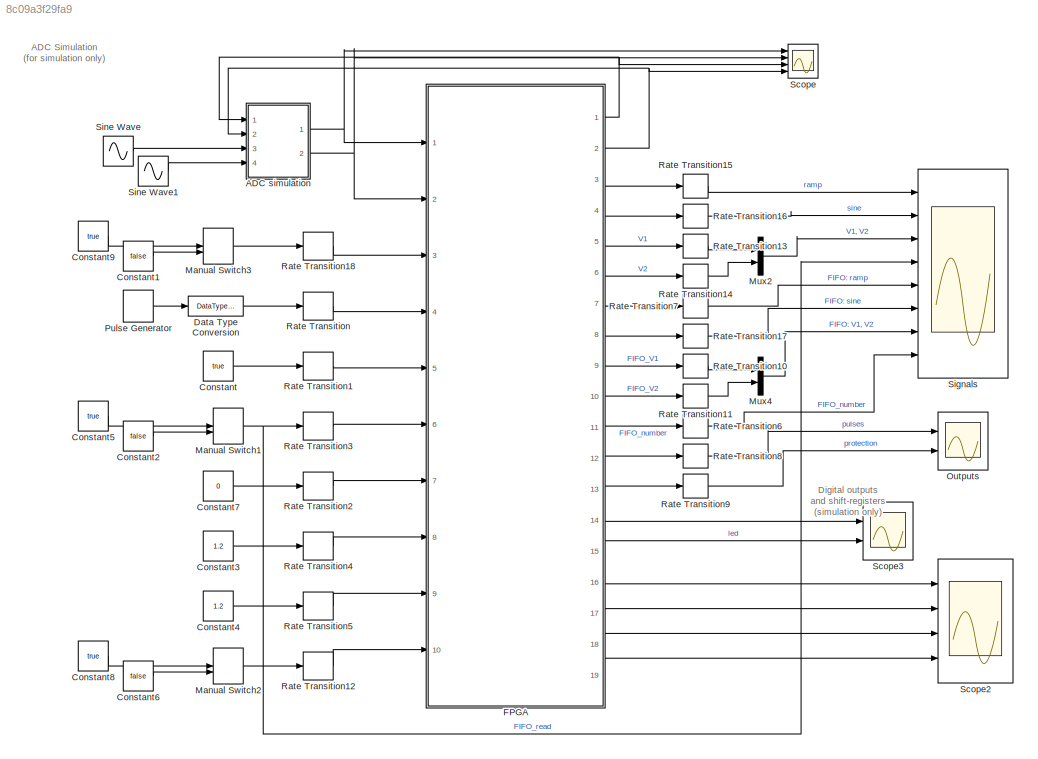
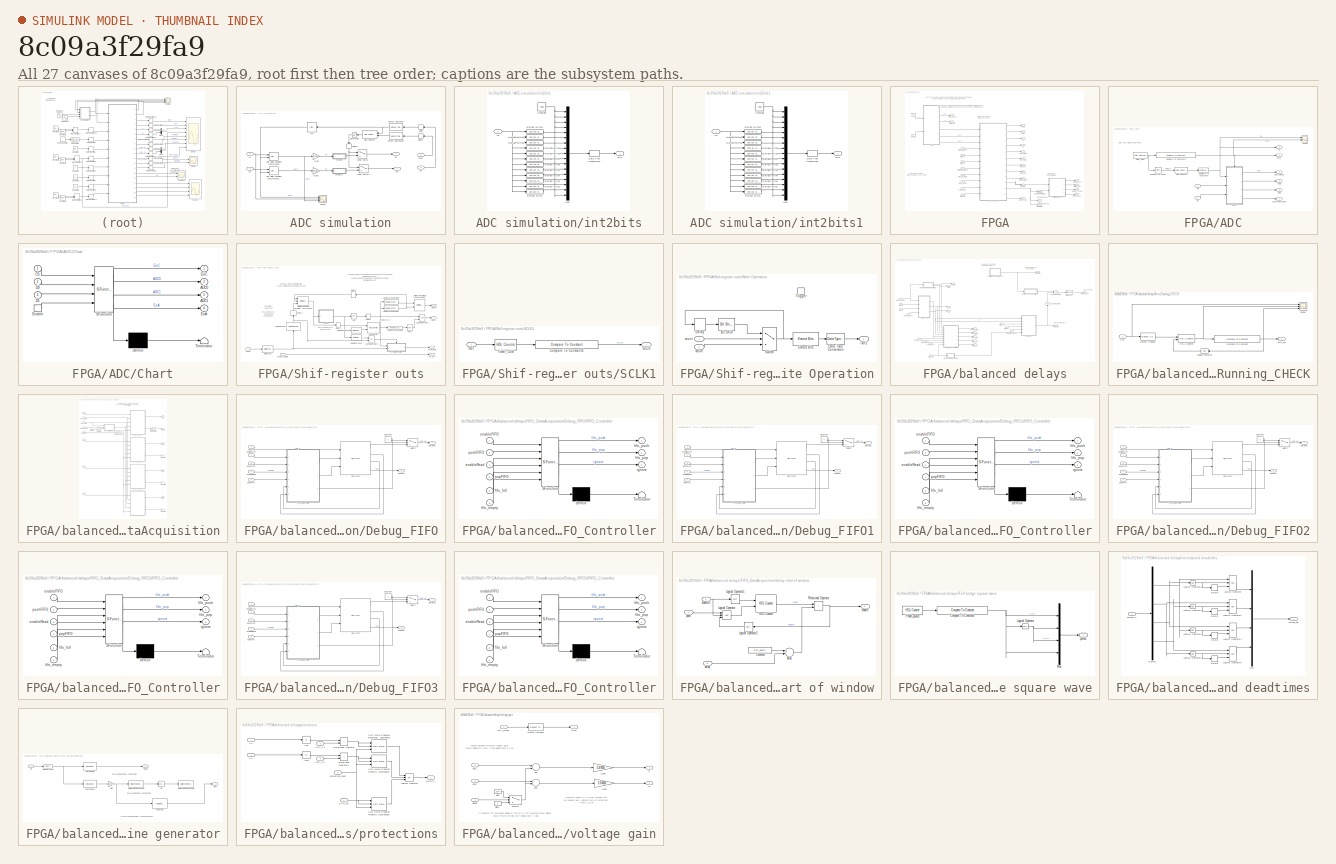
[diagram: thumbnail index - all 27 canvases of the model, root first then tree order]
MODEL slx_8c09a3f29fa9
KIND model
CONFIG AbsTol = auto
CONFIG EnableMultiTasking = on
CONFIG FixedStep = auto
CONFIG InitFcn = Ts_FPGA = 1/25e6;   % FPGA sampling time (clock)\nTs_ADC_comm = 1/2.5e6;   % ADC communication period\nTs_ADC_sample = 70e-6;   % ADC sampling time\n\nTs_ARM = 210e-6;   % ARM execution period\n\nDeadTime = 1e-6;   % deadtime for output signals\n\nFIFO_length = 1000;   % number of fifo samples\n\nTs_SRO = 1/8e6; % communication time for the shift register outputs
CONFIG MaxStep = auto
CONFIG MinStep = auto
CONFIG RelTol = 1e-3
CONFIG SampleTimeConstraint = Unconstrained
CONFIG Solver = FixedStepAuto
CONFIG SolverName = FixedStepAuto
CONFIG StartTime = 0.0
CONFIG StopTime = 0.02
WORKSPACE source: mxarray member
WORKSPACE mwTaskManagerKernelLatency = 1e-06
BLOCK [SubSystem] ADC simulation
  Ports = [4, 2]
  RequestExecContextInheritance = off
BLOCK [Inport] ADC simulation/CS
  IconDisplay = Port number
  Port = 2
BLOCK [Outport] ADC simulation/D1
  IconDisplay = Port number
BLOCK [Outport] ADC simulation/D2
  IconDisplay = Port number
  Port = 2
BLOCK [Delay] ADC simulation/Delay
  DelayLength = 1
  InputPortMap = u0
  Ports = [1, 1]
BLOCK [Delay] ADC simulation/Delay1
  DelayLength = 1
  InputPortMap = u0
  Ports = [1, 1]
BLOCK [Delay] ADC simulation/Delay2
  DelayLength = 1
  InputPortMap = u0
  Ports = [1, 1]
BLOCK [Reference] ADC simulation/Detect Decrease  REF=simulink/Logic and Bit
Operations/Detect
Decrease
  Ports = [1, 1]
  SourceBlock = simulink/Logic and Bit\nOperations/Detect\nDecrease
  SourceProductBaseCode = SL
  SourceProductName = Simulink
  SourceType = Detect Decrease
BLOCK [Reference] ADC simulation/Detect Decrease1  REF=simulink/Logic and Bit
Operations/Detect
Decrease
  Ports = [1, 1]
  SourceBlock = simulink/Logic and Bit\nOperations/Detect\nDecrease
  SourceProductBaseCode = SL
  SourceProductName = Simulink
  SourceType = Detect Decrease
BLOCK [Gain] ADC simulation/Gain
  Gain = 4095/3.3
  OutDataTypeStr = fixdt(0,12,0)
  ParamDataTypeStr = Inherit: Inherit via internal rule
  RndMeth = Nearest
BLOCK [Gain] ADC simulation/Gain1
  Gain = 4095/3.3
  OutDataTypeStr = fixdt(0,12,0)
  ParamDataTypeStr = Inherit: Inherit via internal rule
  RndMeth = Nearest
BLOCK [Reference] ADC simulation/HDL Counter  REF=hdlsllib/Sources/HDL Counter
  Ports = [2, 1]
  SourceBlock = hdlsllib/Sources/HDL Counter
  SourceProductBaseCode = SL
  SourceProductName = Simulink
  SourceType = HDL Counter
BLOCK [InitialCondition] ADC simulation/IC1
  Value = true
BLOCK [MultiPortSwitch] ADC simulation/Index Vector
  DataPortOrder = Zero-based contiguous
  InputSameDT = off
  Inputs = 1
  Ports = [2, 1]
  SaturateOnIntegerOverflow = off
  zeroidx = on
BLOCK [MultiPortSwitch] ADC simulation/Index Vector1
  DataPortOrder = Zero-based contiguous
  InputSameDT = off
  Inputs = 1
  Ports = [2, 1]
  SaturateOnIntegerOverflow = off
  zeroidx = on
BLOCK [Inport] ADC simulation/SCLK
  IconDisplay = Port number
BLOCK [Saturate] ADC simulation/Saturation
  InputPortMap = u0
  LowerLimit = 0
  Ports = [1, 1]
  UpperLimit = 16
BLOCK [Scope] ADC simulation/Scope
  Floating = off
  NumInputPorts = 3
  Ports = [3]
  ScopeSpecificationString = Simulink.scopes.TimeScopeBlockCfg('CurrentConfiguration', extmgr.ConfigurationSet(extmgr.Configuration('Core','General UI',true),extmgr.Configuration('Core','Source UI',true),extmgr.Configuration('Sources','WiredSimulink',true,'DataLoggingVariableName','ScopeData2'),extmgr.Configuration('Visuals','Time Domain',true,'SerializedDisplays',{struct('MinYLimReal','-0.125','MaxYLimReal','1.125','YLabelRe...<+2103ch>
BLOCK [Reference] ADC simulation/Unit Delay Enabled Synchronous  REF=hdlsllib/Discrete/Unit Delay Enabled
Synchronous
  Ports = [2, 1]
  SourceBlock = hdlsllib/Discrete/Unit Delay Enabled\nSynchronous
  SourceProductBaseCode = SL
  SourceProductName = Simulink
  SourceType = Unit Delay Enabled Synchronous
BLOCK [Reference] ADC simulation/Unit Delay Enabled Synchronous1  REF=hdlsllib/Discrete/Unit Delay Enabled
Synchronous
  Ports = [2, 1]
  SourceBlock = hdlsllib/Discrete/Unit Delay Enabled\nSynchronous
  SourceProductBaseCode = SL
  SourceProductName = Simulink
  SourceType = Unit Delay Enabled Synchronous
BLOCK [Inport] ADC simulation/V1
  IconDisplay = Port number
  Port = 3
BLOCK [Inport] ADC simulation/V2
  IconDisplay = Port number
  Port = 4
BLOCK [SubSystem] ADC simulation/int2bits
  Ports = [1, 1]
  RequestExecContextInheritance = off
BLOCK [Constant] ADC simulation/int2bits/Constant
  OutDataTypeStr = fixdt(0,1,0)
  Value = false
BLOCK [DataTypeConversion] ADC simulation/int2bits/Data Type Conversion1
  RndMeth = Floor
  SaturateOnIntegerOverflow = off
BLOCK [Reference] ADC simulation/int2bits/Extract Bits1  REF=simulink/Logic and Bit
Operations/Extract Bits
  Ports = [1, 1]
  SourceBlock = simulink/Logic and Bit\nOperations/Extract Bits
  SourceProductBaseCode = SL
  SourceProductName = Simulink
  SourceType = Extract Bits
BLOCK [Reference] ADC simulation/int2bits/Extract Bits10  REF=simulink/Logic and Bit
Operations/Extract Bits
  Ports = [1, 1]
  SourceBlock = simulink/Logic and Bit\nOperations/Extract Bits
  SourceProductBaseCode = SL
  SourceProductName = Simulink
  SourceType = Extract Bits
BLOCK [Reference] ADC simulation/int2bits/Extract Bits11  REF=simulink/Logic and Bit
Operations/Extract Bits
  Ports = [1, 1]
  SourceBlock = simulink/Logic and Bit\nOperations/Extract Bits
  SourceProductBaseCode = SL
  SourceProductName = Simulink
  SourceType = Extract Bits
BLOCK [Reference] ADC simulation/int2bits/Extract Bits12  REF=simulink/Logic and Bit
Operations/Extract Bits
  Ports = [1, 1]
  SourceBlock = simulink/Logic and Bit\nOperations/Extract Bits
  SourceProductBaseCode = SL
  SourceProductName = Simulink
  SourceType = Extract Bits
BLOCK [Reference] ADC simulation/int2bits/Extract Bits2  REF=simulink/Logic and Bit
Operations/Extract Bits
  Ports = [1, 1]
  SourceBlock = simulink/Logic and Bit\nOperations/Extract Bits
  SourceProductBaseCode = SL
  SourceProductName = Simulink
  SourceType = Extract Bits
BLOCK [Reference] ADC simulation/int2bits/Extract Bits3  REF=simulink/Logic and Bit
Operations/Extract Bits
  Ports = [1, 1]
  SourceBlock = simulink/Logic and Bit\nOperations/Extract Bits
  SourceProductBaseCode = SL
  SourceProductName = Simulink
  SourceType = Extract Bits
BLOCK [Reference] ADC simulation/int2bits/Extract Bits4  REF=simulink/Logic and Bit
Operations/Extract Bits
  Ports = [1, 1]
  SourceBlock = simulink/Logic and Bit\nOperations/Extract Bits
  SourceProductBaseCode = SL
  SourceProductName = Simulink
  SourceType = Extract Bits
BLOCK [Reference] ADC simulation/int2bits/Extract Bits5  REF=simulink/Logic and Bit
Operations/Extract Bits
  Ports = [1, 1]
  SourceBlock = simulink/Logic and Bit\nOperations/Extract Bits
  SourceProductBaseCode = SL
  SourceProductName = Simulink
  SourceType = Extract Bits
BLOCK [Reference] ADC simulation/int2bits/Extract Bits6  REF=simulink/Logic and Bit
Operations/Extract Bits
  Ports = [1, 1]
  SourceBlock = simulink/Logic and Bit\nOperations/Extract Bits
  SourceProductBaseCode = SL
  SourceProductName = Simulink
  SourceType = Extract Bits
BLOCK [Reference] ADC simulation/int2bits/Extract Bits7  REF=simulink/Logic and Bit
Operations/Extract Bits
  Ports = [1, 1]
  SourceBlock = simulink/Logic and Bit\nOperations/Extract Bits
  SourceProductBaseCode = SL
  SourceProductName = Simulink
  SourceType = Extract Bits
BLOCK [Reference] ADC simulation/int2bits/Extract Bits8  REF=simulink/Logic and Bit
Operations/Extract Bits
  Ports = [1, 1]
  SourceBlock = simulink/Logic and Bit\nOperations/Extract Bits
  SourceProductBaseCode = SL
  SourceProductName = Simulink
  SourceType = Extract Bits
BLOCK [Reference] ADC simulation/int2bits/Extract Bits9  REF=simulink/Logic and Bit
Operations/Extract Bits
  Ports = [1, 1]
  SourceBlock = simulink/Logic and Bit\nOperations/Extract Bits
  SourceProductBaseCode = SL
  SourceProductName = Simulink
  SourceType = Extract Bits
BLOCK [Mux] ADC simulation/int2bits/Mux
  DisplayOption = bar
  Inputs = 17
  Ports = [17, 1]
BLOCK [Outport] ADC simulation/int2bits/bits
  IconDisplay = Port number
BLOCK [Inport] ADC simulation/int2bits/int
  IconDisplay = Port number
BLOCK [SubSystem] ADC simulation/int2bits1
  Ports = [1, 1]
  RequestExecContextInheritance = off
BLOCK [Constant] ADC simulation/int2bits1/Constant
  OutDataTypeStr = fixdt(0,1,0)
  Value = false
BLOCK [DataTypeConversion] ADC simulation/int2bits1/Data Type Conversion1
  RndMeth = Floor
  SaturateOnIntegerOverflow = off
BLOCK [Reference] ADC simulation/int2bits1/Extract Bits1  REF=simulink/Logic and Bit
Operations/Extract Bits
  Ports = [1, 1]
  SourceBlock = simulink/Logic and Bit\nOperations/Extract Bits
  SourceProductBaseCode = SL
  SourceProductName = Simulink
  SourceType = Extract Bits
BLOCK [Reference] ADC simulation/int2bits1/Extract Bits10  REF=simulink/Logic and Bit
Operations/Extract Bits
  Ports = [1, 1]
  SourceBlock = simulink/Logic and Bit\nOperations/Extract Bits
  SourceProductBaseCode = SL
  SourceProductName = Simulink
  SourceType = Extract Bits
BLOCK [Reference] ADC simulation/int2bits1/Extract Bits11  REF=simulink/Logic and Bit
Operations/Extract Bits
  Ports = [1, 1]
  SourceBlock = simulink/Logic and Bit\nOperations/Extract Bits
  SourceProductBaseCode = SL
  SourceProductName = Simulink
  SourceType = Extract Bits
BLOCK [Reference] ADC simulation/int2bits1/Extract Bits12  REF=simulink/Logic and Bit
Operations/Extract Bits
  Ports = [1, 1]
  SourceBlock = simulink/Logic and Bit\nOperations/Extract Bits
  SourceProductBaseCode = SL
  SourceProductName = Simulink
  SourceType = Extract Bits
BLOCK [Reference] ADC simulation/int2bits1/Extract Bits2  REF=simulink/Logic and Bit
Operations/Extract Bits
  Ports = [1, 1]
  SourceBlock = simulink/Logic and Bit\nOperations/Extract Bits
  SourceProductBaseCode = SL
  SourceProductName = Simulink
  SourceType = Extract Bits
BLOCK [Reference] ADC simulation/int2bits1/Extract Bits3  REF=simulink/Logic and Bit
Operations/Extract Bits
  Ports = [1, 1]
  SourceBlock = simulink/Logic and Bit\nOperations/Extract Bits
  SourceProductBaseCode = SL
  SourceProductName = Simulink
  SourceType = Extract Bits
BLOCK [Reference] ADC simulation/int2bits1/Extract Bits4  REF=simulink/Logic and Bit
Operations/Extract Bits
  Ports = [1, 1]
  SourceBlock = simulink/Logic and Bit\nOperations/Extract Bits
  SourceProductBaseCode = SL
  SourceProductName = Simulink
  SourceType = Extract Bits
BLOCK [Reference] ADC simulation/int2bits1/Extract Bits5  REF=simulink/Logic and Bit
Operations/Extract Bits
  Ports = [1, 1]
  SourceBlock = simulink/Logic and Bit\nOperations/Extract Bits
  SourceProductBaseCode = SL
  SourceProductName = Simulink
  SourceType = Extract Bits
BLOCK [Reference] ADC simulation/int2bits1/Extract Bits6  REF=simulink/Logic and Bit
Operations/Extract Bits
  Ports = [1, 1]
  SourceBlock = simulink/Logic and Bit\nOperations/Extract Bits
  SourceProductBaseCode = SL
  SourceProductName = Simulink
  SourceType = Extract Bits
BLOCK [Reference] ADC simulation/int2bits1/Extract Bits7  REF=simulink/Logic and Bit
Operations/Extract Bits
  Ports = [1, 1]
  SourceBlock = simulink/Logic and Bit\nOperations/Extract Bits
  SourceProductBaseCode = SL
  SourceProductName = Simulink
  SourceType = Extract Bits
BLOCK [Reference] ADC simulation/int2bits1/Extract Bits8  REF=simulink/Logic and Bit
Operations/Extract Bits
  Ports = [1, 1]
  SourceBlock = simulink/Logic and Bit\nOperations/Extract Bits
  SourceProductBaseCode = SL
  SourceProductName = Simulink
  SourceType = Extract Bits
BLOCK [Reference] ADC simulation/int2bits1/Extract Bits9  REF=simulink/Logic and Bit
Operations/Extract Bits
  Ports = [1, 1]
  SourceBlock = simulink/Logic and Bit\nOperations/Extract Bits
  SourceProductBaseCode = SL
  SourceProductName = Simulink
  SourceType = Extract Bits
BLOCK [Mux] ADC simulation/int2bits1/Mux
  DisplayOption = bar
  Inputs = 17
  Ports = [17, 1]
BLOCK [Outport] ADC simulation/int2bits1/bits
  IconDisplay = Port number
BLOCK [Inport] ADC simulation/int2bits1/int
  IconDisplay = Port number
BLOCK [Constant] Constant
  SampleTime = Ts_ARM
  Value = true
BLOCK [Constant] Constant1
  SampleTime = Ts_ARM
  Value = false
BLOCK [Constant] Constant2
  SampleTime = Ts_ARM
  Value = false
BLOCK [Constant] Constant3
  OutDataTypeStr = Inherit: Inherit via back propagation
  SampleTime = Ts_ARM
  Value = 1.2
BLOCK [Constant] Constant4
  OutDataTypeStr = Inherit: Inherit via back propagation
  SampleTime = Ts_ARM
  Value = 1.2
BLOCK [Constant] Constant5
  SampleTime = Ts_ARM
  Value = true
BLOCK [Constant] Constant6
  SampleTime = Ts_ARM
  Value = false
BLOCK [Constant] Constant7
  OutDataTypeStr = Inherit: Inherit via back propagation
  SampleTime = Ts_ARM
  Value = 0
BLOCK [Constant] Constant8
  SampleTime = Ts_ARM
  Value = true
BLOCK [Constant] Constant9
  SampleTime = Ts_ARM
  Value = true
BLOCK [DataTypeConversion] Data Type Conversion
  OutDataTypeStr = boolean
  RndMeth = Floor
  SaturateOnIntegerOverflow = off
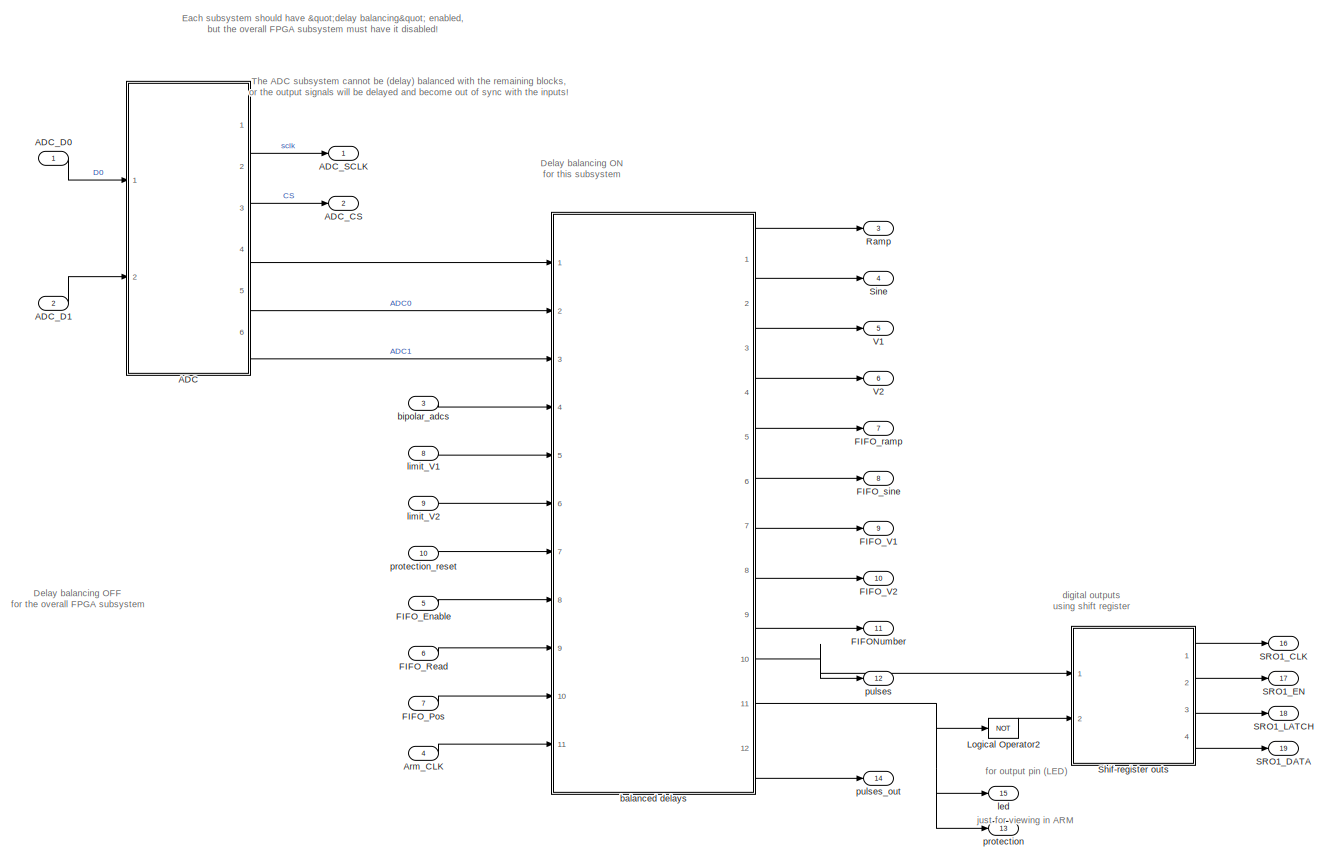
[diagram: FPGA - part 1/1, most of the canvas]
BLOCK [SubSystem] FPGA
  Ports = [10, 19]
  RequestExecContextInheritance = off
  TreatAsAtomicUnit = on
BLOCK [SubSystem] FPGA/ADC
  Ports = [2, 6]
  RequestExecContextInheritance = off
BLOCK [Outport] FPGA/ADC/ADC0
  IconDisplay = Port number
  Port = 5
BLOCK [Outport] FPGA/ADC/ADC1
  IconDisplay = Port number
  Port = 6
BLOCK [Outport] FPGA/ADC/CS
  IconDisplay = Port number
  OutDataTypeStr = boolean
  Port = 3
  PortDimensions = 1
BLOCK [SubSystem] FPGA/ADC/Chart
  ErrorFcn = Stateflow.Translate.translate
  PermitHierarchicalResolution = ExplicitOnly
  Ports = [3, 4, 0, 1]
  RequestExecContextInheritance = off
  SFBlockType = Chart
  TreatAsAtomicUnit = on
BLOCK [Demux] FPGA/ADC/Chart/ Demux 
  DisplayOption = bar
  Outputs = 1
  Ports = [1, 1]
BLOCK [S-Function] FPGA/ADC/Chart/ SFunction 
  EnableBusSupport = on
  FunctionName = sf_sfun
  PortCounts = [4 5]
  Ports = [4, 5]
  SFcnIsStateOwnerBlock = off
  SFunctionDeploymentMode = off
  Tag = Stateflow S-Function 1
BLOCK [Terminator] FPGA/ADC/Chart/ Terminator 
BLOCK [Outport] FPGA/ADC/Chart/ADC0
  IconDisplay = Port number
  Port = 2
BLOCK [Outport] FPGA/ADC/Chart/ADC1
  IconDisplay = Port number
  Port = 3
BLOCK [Inport] FPGA/ADC/Chart/CS
  IconDisplay = Port number
BLOCK [Inport] FPGA/ADC/Chart/D0
  IconDisplay = Port number
  Port = 2
BLOCK [Inport] FPGA/ADC/Chart/D1
  IconDisplay = Port number
  Port = 3
BLOCK [TriggerPort] FPGA/ADC/Chart/Enable
  Ports = [0, 1]
  ShowOutputPort = on
  StatesWhenEnabling = held
  VariantControl = (inherit)
BLOCK [Outport] FPGA/ADC/Chart/EoA
  IconDisplay = Port number
  Port = 4
BLOCK [Outport] FPGA/ADC/Chart/EoC
  IconDisplay = Port number
BLOCK [Reference] FPGA/ADC/Compare To Constant4  REF=simulink/Logic and Bit
Operations/Compare
To Constant
  Ports = [1, 1]
  SourceBlock = simulink/Logic and Bit\nOperations/Compare\nTo Constant
  SourceProductBaseCode = SL
  SourceType = Compare To Constant
BLOCK [Reference] FPGA/ADC/Compare To Constant5  REF=simulink/Logic and Bit
Operations/Compare
To Constant
  Ports = [1, 1]
  SourceBlock = simulink/Logic and Bit\nOperations/Compare\nTo Constant
  SourceProductBaseCode = SL
  SourceType = Compare To Constant
BLOCK [Reference] FPGA/ADC/Compare To Zero1  REF=simulink/Logic and Bit
Operations/Compare
To Zero
  Ports = [1, 1]
  SourceBlock = simulink/Logic and Bit\nOperations/Compare\nTo Zero
  SourceProductBaseCode = SL
  SourceType = Compare To Zero
BLOCK [Outport] FPGA/ADC/Conversion_Done
  IconDisplay = Port number
BLOCK [Inport] FPGA/ADC/D0
  IconDisplay = Port number
  OutDataTypeStr = boolean
  PortDimensions = 1
BLOCK [Inport] FPGA/ADC/D1
  IconDisplay = Port number
  OutDataTypeStr = boolean
  Port = 2
  PortDimensions = 1
BLOCK [Outport] FPGA/ADC/Data_Ready
  IconDisplay = Port number
  Port = 4
BLOCK [Reference] FPGA/ADC/HDL Counter  REF=hdlsllib/Sources/HDL Counter
  Ports = [1, 1]
  SourceBlock = hdlsllib/Sources/HDL Counter
  SourceProductBaseCode = SL
  SourceProductName = Simulink
  SourceType = HDL Counter
BLOCK [Outport] FPGA/ADC/SCLK
  IconDisplay = Port number
  OutDataTypeStr = boolean
  Port = 2
  PortDimensions = 1
BLOCK [Scope] FPGA/ADC/Scope
  Floating = off
  NumInputPorts = 2
  Ports = [2]
  ScopeSpecificationString = Simulink.scopes.TimeScopeBlockCfg('CurrentConfiguration', extmgr.ConfigurationSet(extmgr.Configuration('Core','General UI',true),extmgr.Configuration('Core','Source UI',true),extmgr.Configuration('Sources','WiredSimulink',true,'DataLoggingVariableName','ScopeData2'),extmgr.Configuration('Visuals','Time Domain',true,'SerializedDisplays',{struct('MinYLimReal','-0.125','MaxYLimReal','1.125','YLabelRe...<+2165ch>
BLOCK [Reference] FPGA/ADC/Timer_Com  REF=hdlsllib/Sources/HDL Counter
  Ports = [0, 1]
  SourceBlock = hdlsllib/Sources/HDL Counter
  SourceProductBaseCode = SL
  SourceType = HDL Counter
BLOCK [Outport] FPGA/ADC_CS
  IconDisplay = Port number
  Port = 2
  VectorParamsAs1DForOutWhenUnconnected = off
BLOCK [Inport] FPGA/ADC_D0
  IconDisplay = Port number
  OutDataTypeStr = boolean
  PortDimensions = 1
BLOCK [Inport] FPGA/ADC_D1
  IconDisplay = Port number
  OutDataTypeStr = boolean
  Port = 2
  PortDimensions = 1
BLOCK [Outport] FPGA/ADC_SCLK
  IconDisplay = Port number
  VectorParamsAs1DForOutWhenUnconnected = off
BLOCK [Inport] FPGA/Arm_CLK
  IconDisplay = Port number
  OutDataTypeStr = boolean
  Port = 4
  PortDimensions = 1
BLOCK [Outport] FPGA/FIFONumber
  IconDisplay = Port number
  Port = 11
  VectorParamsAs1DForOutWhenUnconnected = off
BLOCK [Inport] FPGA/FIFO_Enable
  IconDisplay = Port number
  OutDataTypeStr = boolean
  Port = 5
BLOCK [Inport] FPGA/FIFO_Pos
  IconDisplay = Port number
  OutDataTypeStr = uint32
  Port = 7
BLOCK [Inport] FPGA/FIFO_Read
  IconDisplay = Port number
  OutDataTypeStr = boolean
  Port = 6
BLOCK [Outport] FPGA/FIFO_V1
  IconDisplay = Port number
  Port = 9
  VectorParamsAs1DForOutWhenUnconnected = off
BLOCK [Outport] FPGA/FIFO_V2
  IconDisplay = Port number
  Port = 10
  VectorParamsAs1DForOutWhenUnconnected = off
BLOCK [Outport] FPGA/FIFO_ramp
  IconDisplay = Port number
  Port = 7
  VectorParamsAs1DForOutWhenUnconnected = off
BLOCK [Outport] FPGA/FIFO_sine
  IconDisplay = Port number
  Port = 8
  VectorParamsAs1DForOutWhenUnconnected = off
BLOCK [Logic] FPGA/Logical Operator2
  AllPortsSameDT = off
  Operator = NOT
  OutDataTypeStr = boolean
  Ports = [1, 1]
BLOCK [Outport] FPGA/Ramp
  IconDisplay = Port number
  Port = 3
  VectorParamsAs1DForOutWhenUnconnected = off
BLOCK [Outport] FPGA/SRO1_CLK
  IconDisplay = Port number
  Port = 16
BLOCK [Outport] FPGA/SRO1_DATA
  IconDisplay = Port number
  Port = 19
BLOCK [Outport] FPGA/SRO1_EN
  IconDisplay = Port number
  Port = 17
BLOCK [Outport] FPGA/SRO1_LATCH
  IconDisplay = Port number
  Port = 18
BLOCK [SubSystem] FPGA/Shif-register outs
  Ports = [2, 4]
  RequestExecContextInheritance = off
  TreatAsAtomicUnit = on
BLOCK [Reference] FPGA/Shif-register outs/Bit Concat1  REF=hdlsllib/Logic and Bit
Operations/Bit Concat
  Ports = [1, 1]
  SourceBlock = hdlsllib/Logic and Bit\nOperations/Bit Concat
  SourceProductBaseCode = SL
  SourceType = Bit Concat
BLOCK [Reference] FPGA/Shif-register outs/Compare To Constant  REF=simulink/Logic and Bit
Operations/Compare
To Constant
  Ports = [1, 1]
  SourceBlock = simulink/Logic and Bit\nOperations/Compare\nTo Constant
  SourceProductBaseCode = SL
  SourceType = Compare To Constant
BLOCK [Reference] FPGA/Shif-register outs/Compare To Constant1  REF=simulink/Logic and Bit
Operations/Compare
To Constant
  Ports = [1, 1]
  SourceBlock = simulink/Logic and Bit\nOperations/Compare\nTo Constant
  SourceProductBaseCode = SL
  SourceType = Compare To Constant
BLOCK [Reference] FPGA/Shif-register outs/Compare To Constant2  REF=simulink/Logic and Bit
Operations/Compare
To Constant
  Ports = [1, 1]
  SourceBlock = simulink/Logic and Bit\nOperations/Compare\nTo Constant
  SourceProductBaseCode = SL
  SourceType = Compare To Constant
BLOCK [Delay] FPGA/Shif-register outs/Delay1
  DelayLength = 1
  InputPortMap = u0
  Ports = [1, 1]
BLOCK [Delay] FPGA/Shif-register outs/Delay2
  DelayLength = round(Ts_SRO/Ts_FPGA/2)
  InputPortMap = u0
  Ports = [1, 1]
BLOCK [Delay] FPGA/Shif-register outs/Delay3
  DelayLength = 1
  InitialCondition = 1
  InputPortMap = u0
  Ports = [1, 1]
BLOCK [Delay] FPGA/Shif-register outs/Delay4
  DelayLength = 1
  InputPortMap = u0
  Ports = [1, 1]
BLOCK [Reference] FPGA/Shif-register outs/Detect Change  REF=simulink/Logic and Bit
Operations/Detect
Change
  Ports = [1, 1]
  SourceBlock = simulink/Logic and Bit\nOperations/Detect\nChange
  SourceProductBaseCode = SL
  SourceType = Detect Change
BLOCK [Reference] FPGA/Shif-register outs/Detect Decrease1  REF=simulink/Logic and Bit
Operations/Detect
Decrease
  Ports = [1, 1]
  SourceBlock = simulink/Logic and Bit\nOperations/Detect\nDecrease
  SourceProductBaseCode = SL
  SourceType = Detect Decrease
BLOCK [Reference] FPGA/Shif-register outs/Detect Increase1  REF=simulink/Logic and Bit
Operations/Detect
Increase
  Ports = [1, 1]
  SourceBlock = simulink/Logic and Bit\nOperations/Detect\nIncrease
  SourceProductBaseCode = SL
  SourceType = Detect Increase
BLOCK [Reference] FPGA/Shif-register outs/HDL Counter  REF=hdlsllib/Sources/HDL Counter
  Ports = [2, 1]
  SourceBlock = hdlsllib/Sources/HDL Counter
  SourceProductBaseCode = SL
  SourceType = HDL Counter
BLOCK [Logic] FPGA/Shif-register outs/Logical Operator1
  AllPortsSameDT = off
  Operator = OR
  OutDataTypeStr = boolean
  Ports = [2, 1]
BLOCK [Logic] FPGA/Shif-register outs/Logical Operator2
  AllPortsSameDT = off
  OutDataTypeStr = boolean
  Ports = [2, 1]
BLOCK [Logic] FPGA/Shif-register outs/NOT
  AllPortsSameDT = off
  IconShape = distinctive
  Operator = NOT
  OutDataTypeStr = boolean
  Ports = [1, 1]
BLOCK [Logic] FPGA/Shif-register outs/NOT1
  AllPortsSameDT = off
  IconShape = distinctive
  Operator = NOT
  OutDataTypeStr = boolean
  Ports = [1, 1]
BLOCK [Outport] FPGA/Shif-register outs/SCLK
  IconDisplay = Port number
BLOCK [SubSystem] FPGA/Shif-register outs/SCLK1
  Ports = [1, 1]
  RequestExecContextInheritance = off
BLOCK [Reference] FPGA/Shif-register outs/SCLK1/Compare To Constant4  REF=simulink/Logic and Bit
Operations/Compare
To Constant
  Ports = [1, 1]
  SourceBlock = simulink/Logic and Bit\nOperations/Compare\nTo Constant
  SourceProductBaseCode = SL
  SourceType = Compare To Constant
BLOCK [Inport] FPGA/Shif-register outs/SCLK1/RST
  IconDisplay = Port number
BLOCK [Outport] FPGA/Shif-register outs/SCLK1/SCLK
  IconDisplay = Port number
BLOCK [Reference] FPGA/Shif-register outs/SCLK1/Timer_Com  REF=hdlsllib/Sources/HDL Counter
  Ports = [1, 1]
  SourceBlock = hdlsllib/Sources/HDL Counter
  SourceProductBaseCode = SL
  SourceType = HDL Counter
BLOCK [Outport] FPGA/Shif-register outs/Serial_data
  IconDisplay = Port number
  Port = 4
BLOCK [Outport] FPGA/Shif-register outs/Strobe 
  IconDisplay = Port number
  Port = 3
BLOCK [Reference] FPGA/Shif-register outs/Unit Delay Enabled Resettable Synchronous  REF=hdlsllib/Discrete/Unit Delay Enabled Resettable
Synchronous
  Ports = [3, 1]
  SourceBlock = hdlsllib/Discrete/Unit Delay Enabled Resettable\nSynchronous
  SourceProductBaseCode = SL
  SourceType = Unit Delay Enabled Resettable Synchronous
BLOCK [Reference] FPGA/Shif-register outs/Unit Delay Resettable Synchronous  REF=hdlsllib/Discrete/Unit Delay Resettable
Synchronous
  Ports = [2, 1]
  SourceBlock = hdlsllib/Discrete/Unit Delay Resettable\nSynchronous
  SourceProductBaseCode = SL
  SourceType = Unit Delay Resettable Synchronous
BLOCK [SubSystem] FPGA/Shif-register outs/Write Operation
  Ports = [2, 1, 0, 1]
  RequestExecContextInheritance = off
  TreatAsAtomicUnit = on
BLOCK [Reference] FPGA/Shif-register outs/Write Operation/Bit Shift  REF=hdlsllib/Logic and Bit
Operations/Bit Shift
  Ports = [1, 1]
  SourceBlock = hdlsllib/Logic and Bit\nOperations/Bit Shift
  SourceProductBaseCode = SL
  SourceType = Bit Shift
BLOCK [DataTypeConversion] FPGA/Shif-register outs/Write Operation/Data Type Conversion
  OutDataTypeStr = boolean
  RndMeth = Floor
  SaturateOnIntegerOverflow = off
BLOCK [Delay] FPGA/Shif-register outs/Write Operation/Delay
  DelayLength = 1
  InitialCondition = 0
  InputPortMap = u0
  Ports = [1, 1]
BLOCK [Reference] FPGA/Shif-register outs/Write Operation/Extract Bits  REF=simulink/Logic and Bit
Operations/Extract Bits
  Ports = [1, 1]
  SourceBlock = simulink/Logic and Bit\nOperations/Extract Bits
  SourceProductBaseCode = SL
  SourceType = Extract Bits
BLOCK [Outport] FPGA/Shif-register outs/Write Operation/Out1
  IconDisplay = Port number
  InitialOutput = [0]
BLOCK [Switch] FPGA/Shif-register outs/Write Operation/Switch
  InputSameDT = off
  SaturateOnIntegerOverflow = off
  Threshold = 1
BLOCK [TriggerPort] FPGA/Shif-register outs/Write Operation/Trigger
  PortDimensions = 1
  Ports = []
  StatesWhenEnabling = held
  VariantControl = Variant
BLOCK [Inport] FPGA/Shif-register outs/Write Operation/count
  IconDisplay = Port number
BLOCK [Inport] FPGA/Shif-register outs/Write Operation/value
  IconDisplay = Port number
  Port = 2
BLOCK [Outport] FPGA/Shif-register outs/en_out
  IconDisplay = Port number
  Port = 2
BLOCK [Inport] FPGA/Shif-register outs/enable_outputs
  IconDisplay = Port number
  Port = 2
BLOCK [Inport] FPGA/Shif-register outs/pulses
  IconDisplay = Port number
BLOCK [Outport] FPGA/Sine
  IconDisplay = Port number
  Port = 4
  VectorParamsAs1DForOutWhenUnconnected = off
BLOCK [Outport] FPGA/V1
  IconDisplay = Port number
  Port = 5
  VectorParamsAs1DForOutWhenUnconnected = off
BLOCK [Outport] FPGA/V2
  IconDisplay = Port number
  Port = 6
  VectorParamsAs1DForOutWhenUnconnected = off
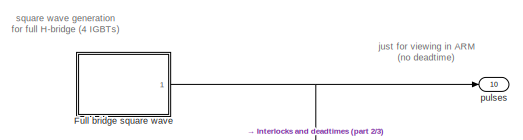
[diagram: FPGA/balanced delays - part 1/3, top center region]
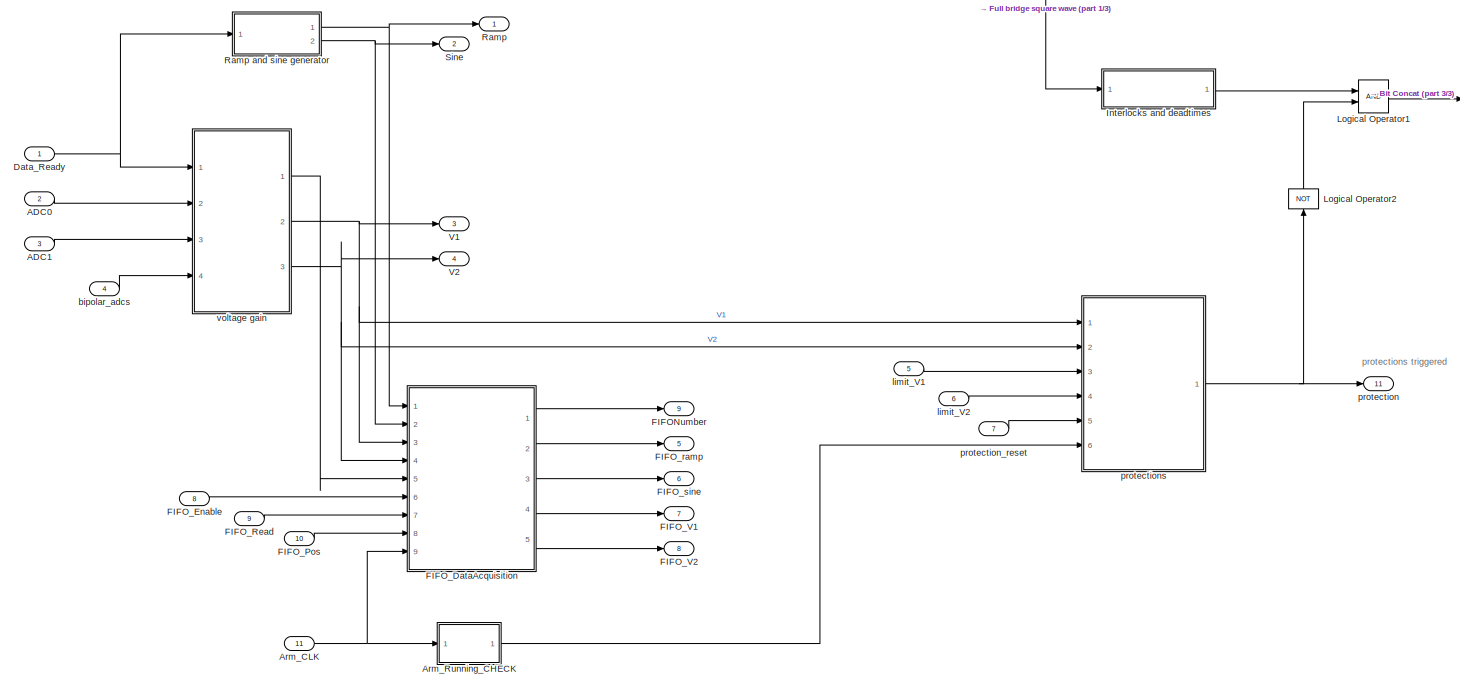
[diagram: FPGA/balanced delays - part 2/3, most of the canvas]
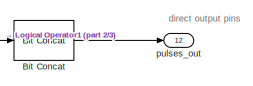
[diagram: FPGA/balanced delays - part 3/3, top right region]
BLOCK [SubSystem] FPGA/balanced delays
  Ports = [11, 12]
  RequestExecContextInheritance = off
BLOCK [Inport] FPGA/balanced delays/ADC0
  IconDisplay = Port number
  Port = 2
BLOCK [Inport] FPGA/balanced delays/ADC1
  IconDisplay = Port number
  Port = 3
BLOCK [Inport] FPGA/balanced delays/Arm_CLK
  IconDisplay = Port number
  OutDataTypeStr = boolean
  Port = 11
  PortDimensions = 1
BLOCK [SubSystem] FPGA/balanced delays/Arm_Running_CHECK
  Ports = [1, 1]
  RequestExecContextInheritance = off
BLOCK [Outport] FPGA/balanced delays/Arm_Running_CHECK/ARM_off
  IconDisplay = Port number
BLOCK [Inport] FPGA/balanced delays/Arm_Running_CHECK/CLK
  IconDisplay = Port number
BLOCK [Reference] FPGA/balanced delays/Arm_Running_CHECK/Compare To Constant  REF=simulink/Logic and Bit
Operations/Compare
To Constant
  Ports = [1, 1]
  SourceBlock = simulink/Logic and Bit\nOperations/Compare\nTo Constant
  SourceProductBaseCode = SL
  SourceProductName = Simulink
  SourceType = Compare To Constant
BLOCK [Reference] FPGA/balanced delays/Arm_Running_CHECK/Detect Change  REF=simulink/Logic and Bit
Operations/Detect
Change
  Ports = [1, 1]
  SourceBlock = simulink/Logic and Bit\nOperations/Detect\nChange
  SourceProductBaseCode = SL
  SourceProductName = Simulink
  SourceType = Detect Change
BLOCK [Reference] FPGA/balanced delays/Arm_Running_CHECK/HDL Counter  REF=hdlsllib/Sources/HDL Counter
  Ports = [2, 1]
  SourceBlock = hdlsllib/Sources/HDL Counter
  SourceProductBaseCode = SL
  SourceProductName = Simulink
  SourceType = HDL Counter
BLOCK [Logic] FPGA/balanced delays/Arm_Running_CHECK/Logical Operator
  AllPortsSameDT = off
  Operator = NOT
  OutDataTypeStr = boolean
  Ports = [1, 1]
BLOCK [Scope] FPGA/balanced delays/Arm_Running_CHECK/Scope
  Floating = off
  NumInputPorts = 3
  Ports = [3]
  ScopeSpecificationString = Simulink.scopes.TimeScopeBlockCfg('CurrentConfiguration', extmgr.ConfigurationSet(extmgr.Configuration('Core','General UI',true),extmgr.Configuration('Core','Source UI',true),extmgr.Configuration('Sources','WiredSimulink',true,'DataLoggingVariableName','ScopeData3'),extmgr.Configuration('Visuals','Time Domain',true,'SerializedDisplays',{struct('MinYLimReal','-0.125','MaxYLimReal','1.125','YLabelRe...<+2792ch>
BLOCK [Reference] FPGA/balanced delays/Bit Concat  REF=hdlsllib/Logic and Bit
Operations/Bit Concat
  Ports = [1, 1]
  SourceBlock = hdlsllib/Logic and Bit\nOperations/Bit Concat
  SourceProductBaseCode = SL
  SourceType = Bit Concat
BLOCK [Inport] FPGA/balanced delays/Data_Ready
  IconDisplay = Port number
BLOCK [Outport] FPGA/balanced delays/FIFONumber
  IconDisplay = Port number
  Port = 9
  VectorParamsAs1DForOutWhenUnconnected = off
BLOCK [SubSystem] FPGA/balanced delays/FIFO_DataAcquisition
  Ports = [9, 5]
  RequestExecContextInheritance = off
  SystemSampleTime = 70e-6
BLOCK [DataTypeConversion] FPGA/balanced delays/FIFO_DataAcquisition/Data Type Conversion
  OutDataTypeStr = uint32
  RndMeth = Floor
  SaturateOnIntegerOverflow = off
BLOCK [SubSystem] FPGA/balanced delays/FIFO_DataAcquisition/Debug_FIFO
  Ports = [5, 2]
  RequestExecContextInheritance = off
BLOCK [Constant] FPGA/balanced delays/FIFO_DataAcquisition/Debug_FIFO/Constant
  OutDataTypeStr = Inherit: Inherit via back propagation
  SampleTime = -1
  Value = 0
BLOCK [Inport] FPGA/balanced delays/FIFO_DataAcquisition/Debug_FIFO/DataIn
  IconDisplay = Port number
BLOCK [Outport] FPGA/balanced delays/FIFO_DataAcquisition/Debug_FIFO/DataOut
  IconDisplay = Port number
  VectorParamsAs1DForOutWhenUnconnected = off
BLOCK [SubSystem] FPGA/balanced delays/FIFO_DataAcquisition/Debug_FIFO/FIFO_Controller
  ErrorFcn = Stateflow.Translate.translate
  PermitHierarchicalResolution = ExplicitOnly
  Ports = [6, 3]
  RequestExecContextInheritance = off
  SFBlockType = MATLAB Function
  TreatAsAtomicUnit = on
BLOCK [Demux] FPGA/balanced delays/FIFO_DataAcquisition/Debug_FIFO/FIFO_Controller/ Demux 
  Outputs = 1
  Ports = [1, 1]
BLOCK [S-Function] FPGA/balanced delays/FIFO_DataAcquisition/Debug_FIFO/FIFO_Controller/ SFunction 
  EnableBusSupport = on
  FunctionName = sf_sfun
  PortCounts = [6 4]
  Ports = [6, 4]
  SFcnIsStateOwnerBlock = off
  SFunctionDeploymentMode = off
  Tag = Stateflow S-Function 3
BLOCK [Terminator] FPGA/balanced delays/FIFO_DataAcquisition/Debug_FIFO/FIFO_Controller/ Terminator 
BLOCK [Inport] FPGA/balanced delays/FIFO_DataAcquisition/Debug_FIFO/FIFO_Controller/enableFIFO
  IconDisplay = Port number
BLOCK [Inport] FPGA/balanced delays/FIFO_DataAcquisition/Debug_FIFO/FIFO_Controller/enableRead
  IconDisplay = Port number
  Port = 3
BLOCK [Inport] FPGA/balanced delays/FIFO_DataAcquisition/Debug_FIFO/FIFO_Controller/fifo_empty
  IconDisplay = Port number
  Port = 6
BLOCK [Inport] FPGA/balanced delays/FIFO_DataAcquisition/Debug_FIFO/FIFO_Controller/fifo_full
  IconDisplay = Port number
  Port = 5
BLOCK [Outport] FPGA/balanced delays/FIFO_DataAcquisition/Debug_FIFO/FIFO_Controller/fifo_pop
  IconDisplay = Port number
  Port = 2
  VectorParamsAs1DForOutWhenUnconnected = off
BLOCK [Outport] FPGA/balanced delays/FIFO_DataAcquisition/Debug_FIFO/FIFO_Controller/fifo_push
  IconDisplay = Port number
  VectorParamsAs1DForOutWhenUnconnected = off
BLOCK [Outport] FPGA/balanced delays/FIFO_DataAcquisition/Debug_FIFO/FIFO_Controller/ignore
  IconDisplay = Port number
  Port = 3
BLOCK [Inport] FPGA/balanced delays/FIFO_DataAcquisition/Debug_FIFO/FIFO_Controller/popFIFO
  IconDisplay = Port number
  Port = 4
BLOCK [Inport] FPGA/balanced delays/FIFO_DataAcquisition/Debug_FIFO/FIFO_Controller/pushFIFO
  IconDisplay = Port number
  Port = 2
BLOCK [Outport] FPGA/balanced delays/FIFO_DataAcquisition/Debug_FIFO/FifoNum
  IconDisplay = Port number
  Port = 2
  VectorParamsAs1DForOutWhenUnconnected = off
BLOCK [Reference] FPGA/balanced delays/FIFO_DataAcquisition/Debug_FIFO/HDL FIFO  REF=hdlsllib/HDL RAMs/HDL FIFO
  Ports = [3, 4]
  SourceBlock = hdlsllib/HDL RAMs/HDL FIFO
  SourceProductBaseCode = SL
  SourceProductName = Simulink
  SourceType = HDL_FIFO
BLOCK [Switch] FPGA/balanced delays/FIFO_DataAcquisition/Debug_FIFO/Switch
  Criteria = u2 > Threshold
  InputSameDT = off
  SaturateOnIntegerOverflow = off
BLOCK [Inport] FPGA/balanced delays/FIFO_DataAcquisition/Debug_FIFO/enableFIFO
  IconDisplay = Port number
  OutDataTypeStr = boolean
  Port = 2
BLOCK [Inport] FPGA/balanced delays/FIFO_DataAcquisition/Debug_FIFO/enableRead
  IconDisplay = Port number
  OutDataTypeStr = boolean
  Port = 4
BLOCK [Inport] FPGA/balanced delays/FIFO_DataAcquisition/Debug_FIFO/popFIFO
  IconDisplay = Port number
  OutDataTypeStr = boolean
  Port = 5
BLOCK [Inport] FPGA/balanced delays/FIFO_DataAcquisition/Debug_FIFO/pushFIFO
  IconDisplay = Port number
  OutDataTypeStr = boolean
  Port = 3
BLOCK [SubSystem] FPGA/balanced delays/FIFO_DataAcquisition/Debug_FIFO1
  Ports = [5, 2]
  RequestExecContextInheritance = off
BLOCK [Constant] FPGA/balanced delays/FIFO_DataAcquisition/Debug_FIFO1/Constant
  OutDataTypeStr = Inherit: Inherit via back propagation
  SampleTime = -1
  Value = 0
BLOCK [Inport] FPGA/balanced delays/FIFO_DataAcquisition/Debug_FIFO1/DataIn
  IconDisplay = Port number
BLOCK [Outport] FPGA/balanced delays/FIFO_DataAcquisition/Debug_FIFO1/DataOut
  IconDisplay = Port number
  VectorParamsAs1DForOutWhenUnconnected = off
BLOCK [SubSystem] FPGA/balanced delays/FIFO_DataAcquisition/Debug_FIFO1/FIFO_Controller
  ErrorFcn = Stateflow.Translate.translate
  PermitHierarchicalResolution = ExplicitOnly
  Ports = [6, 3]
  RequestExecContextInheritance = off
  SFBlockType = MATLAB Function
  TreatAsAtomicUnit = on
BLOCK [Demux] FPGA/balanced delays/FIFO_DataAcquisition/Debug_FIFO1/FIFO_Controller/ Demux 
  Outputs = 1
  Ports = [1, 1]
BLOCK [S-Function] FPGA/balanced delays/FIFO_DataAcquisition/Debug_FIFO1/FIFO_Controller/ SFunction 
  EnableBusSupport = on
  FunctionName = sf_sfun
  PortCounts = [6 4]
  Ports = [6, 4]
  SFcnIsStateOwnerBlock = off
  SFunctionDeploymentMode = off
  Tag = Stateflow S-Function 2
BLOCK [Terminator] FPGA/balanced delays/FIFO_DataAcquisition/Debug_FIFO1/FIFO_Controller/ Terminator 
BLOCK [Inport] FPGA/balanced delays/FIFO_DataAcquisition/Debug_FIFO1/FIFO_Controller/enableFIFO
  IconDisplay = Port number
BLOCK [Inport] FPGA/balanced delays/FIFO_DataAcquisition/Debug_FIFO1/FIFO_Controller/enableRead
  IconDisplay = Port number
  Port = 3
BLOCK [Inport] FPGA/balanced delays/FIFO_DataAcquisition/Debug_FIFO1/FIFO_Controller/fifo_empty
  IconDisplay = Port number
  Port = 6
BLOCK [Inport] FPGA/balanced delays/FIFO_DataAcquisition/Debug_FIFO1/FIFO_Controller/fifo_full
  IconDisplay = Port number
  Port = 5
BLOCK [Outport] FPGA/balanced delays/FIFO_DataAcquisition/Debug_FIFO1/FIFO_Controller/fifo_pop
  IconDisplay = Port number
  Port = 2
  VectorParamsAs1DForOutWhenUnconnected = off
BLOCK [Outport] FPGA/balanced delays/FIFO_DataAcquisition/Debug_FIFO1/FIFO_Controller/fifo_push
  IconDisplay = Port number
  VectorParamsAs1DForOutWhenUnconnected = off
BLOCK [Outport] FPGA/balanced delays/FIFO_DataAcquisition/Debug_FIFO1/FIFO_Controller/ignore
  IconDisplay = Port number
  Port = 3
BLOCK [Inport] FPGA/balanced delays/FIFO_DataAcquisition/Debug_FIFO1/FIFO_Controller/popFIFO
  IconDisplay = Port number
  Port = 4
BLOCK [Inport] FPGA/balanced delays/FIFO_DataAcquisition/Debug_FIFO1/FIFO_Controller/pushFIFO
  IconDisplay = Port number
  Port = 2
BLOCK [Outport] FPGA/balanced delays/FIFO_DataAcquisition/Debug_FIFO1/FifoNum
  IconDisplay = Port number
  Port = 2
  VectorParamsAs1DForOutWhenUnconnected = off
BLOCK [Reference] FPGA/balanced delays/FIFO_DataAcquisition/Debug_FIFO1/HDL FIFO  REF=hdlsllib/HDL RAMs/HDL FIFO
  Ports = [3, 4]
  SourceBlock = hdlsllib/HDL RAMs/HDL FIFO
  SourceProductBaseCode = SL
  SourceProductName = Simulink
  SourceType = HDL_FIFO
BLOCK [Switch] FPGA/balanced delays/FIFO_DataAcquisition/Debug_FIFO1/Switch
  Criteria = u2 > Threshold
  InputSameDT = off
  SaturateOnIntegerOverflow = off
BLOCK [Inport] FPGA/balanced delays/FIFO_DataAcquisition/Debug_FIFO1/enableFIFO
  IconDisplay = Port number
  OutDataTypeStr = boolean
  Port = 2
BLOCK [Inport] FPGA/balanced delays/FIFO_DataAcquisition/Debug_FIFO1/enableRead
  IconDisplay = Port number
  OutDataTypeStr = boolean
  Port = 4
BLOCK [Inport] FPGA/balanced delays/FIFO_DataAcquisition/Debug_FIFO1/popFIFO
  IconDisplay = Port number
  OutDataTypeStr = boolean
  Port = 5
BLOCK [Inport] FPGA/balanced delays/FIFO_DataAcquisition/Debug_FIFO1/pushFIFO
  IconDisplay = Port number
  OutDataTypeStr = boolean
  Port = 3
BLOCK [SubSystem] FPGA/balanced delays/FIFO_DataAcquisition/Debug_FIFO2
  Ports = [5, 2]
  RequestExecContextInheritance = off
BLOCK [Constant] FPGA/balanced delays/FIFO_DataAcquisition/Debug_FIFO2/Constant
  OutDataTypeStr = Inherit: Inherit via back propagation
  SampleTime = -1
  Value = 0
BLOCK [Inport] FPGA/balanced delays/FIFO_DataAcquisition/Debug_FIFO2/DataIn
  IconDisplay = Port number
BLOCK [Outport] FPGA/balanced delays/FIFO_DataAcquisition/Debug_FIFO2/DataOut
  IconDisplay = Port number
  VectorParamsAs1DForOutWhenUnconnected = off
BLOCK [SubSystem] FPGA/balanced delays/FIFO_DataAcquisition/Debug_FIFO2/FIFO_Controller
  ErrorFcn = Stateflow.Translate.translate
  PermitHierarchicalResolution = ExplicitOnly
  Ports = [6, 3]
  RequestExecContextInheritance = off
  SFBlockType = MATLAB Function
  TreatAsAtomicUnit = on
BLOCK [Demux] FPGA/balanced delays/FIFO_DataAcquisition/Debug_FIFO2/FIFO_Controller/ Demux 
  Outputs = 1
  Ports = [1, 1]
BLOCK [S-Function] FPGA/balanced delays/FIFO_DataAcquisition/Debug_FIFO2/FIFO_Controller/ SFunction 
  EnableBusSupport = on
  FunctionName = sf_sfun
  PortCounts = [6 4]
  Ports = [6, 4]
  SFcnIsStateOwnerBlock = off
  SFunctionDeploymentMode = off
  Tag = Stateflow S-Function 4
BLOCK [Terminator] FPGA/balanced delays/FIFO_DataAcquisition/Debug_FIFO2/FIFO_Controller/ Terminator 
BLOCK [Inport] FPGA/balanced delays/FIFO_DataAcquisition/Debug_FIFO2/FIFO_Controller/enableFIFO
  IconDisplay = Port number
BLOCK [Inport] FPGA/balanced delays/FIFO_DataAcquisition/Debug_FIFO2/FIFO_Controller/enableRead
  IconDisplay = Port number
  Port = 3
BLOCK [Inport] FPGA/balanced delays/FIFO_DataAcquisition/Debug_FIFO2/FIFO_Controller/fifo_empty
  IconDisplay = Port number
  Port = 6
BLOCK [Inport] FPGA/balanced delays/FIFO_DataAcquisition/Debug_FIFO2/FIFO_Controller/fifo_full
  IconDisplay = Port number
  Port = 5
BLOCK [Outport] FPGA/balanced delays/FIFO_DataAcquisition/Debug_FIFO2/FIFO_Controller/fifo_pop
  IconDisplay = Port number
  Port = 2
  VectorParamsAs1DForOutWhenUnconnected = off
BLOCK [Outport] FPGA/balanced delays/FIFO_DataAcquisition/Debug_FIFO2/FIFO_Controller/fifo_push
  IconDisplay = Port number
  VectorParamsAs1DForOutWhenUnconnected = off
BLOCK [Outport] FPGA/balanced delays/FIFO_DataAcquisition/Debug_FIFO2/FIFO_Controller/ignore
  IconDisplay = Port number
  Port = 3
BLOCK [Inport] FPGA/balanced delays/FIFO_DataAcquisition/Debug_FIFO2/FIFO_Controller/popFIFO
  IconDisplay = Port number
  Port = 4
BLOCK [Inport] FPGA/balanced delays/FIFO_DataAcquisition/Debug_FIFO2/FIFO_Controller/pushFIFO
  IconDisplay = Port number
  Port = 2
BLOCK [Outport] FPGA/balanced delays/FIFO_DataAcquisition/Debug_FIFO2/FifoNum
  IconDisplay = Port number
  Port = 2
  VectorParamsAs1DForOutWhenUnconnected = off
BLOCK [Reference] FPGA/balanced delays/FIFO_DataAcquisition/Debug_FIFO2/HDL FIFO  REF=hdlsllib/HDL RAMs/HDL FIFO
  Ports = [3, 4]
  SourceBlock = hdlsllib/HDL RAMs/HDL FIFO
  SourceProductBaseCode = SL
  SourceProductName = Simulink
  SourceType = HDL_FIFO
BLOCK [Switch] FPGA/balanced delays/FIFO_DataAcquisition/Debug_FIFO2/Switch
  Criteria = u2 > Threshold
  InputSameDT = off
  SaturateOnIntegerOverflow = off
BLOCK [Inport] FPGA/balanced delays/FIFO_DataAcquisition/Debug_FIFO2/enableFIFO
  IconDisplay = Port number
  OutDataTypeStr = boolean
  Port = 2
BLOCK [Inport] FPGA/balanced delays/FIFO_DataAcquisition/Debug_FIFO2/enableRead
  IconDisplay = Port number
  OutDataTypeStr = boolean
  Port = 4
BLOCK [Inport] FPGA/balanced delays/FIFO_DataAcquisition/Debug_FIFO2/popFIFO
  IconDisplay = Port number
  OutDataTypeStr = boolean
  Port = 5
BLOCK [Inport] FPGA/balanced delays/FIFO_DataAcquisition/Debug_FIFO2/pushFIFO
  IconDisplay = Port number
  OutDataTypeStr = boolean
  Port = 3
BLOCK [SubSystem] FPGA/balanced delays/FIFO_DataAcquisition/Debug_FIFO3
  Ports = [5, 2]
  RequestExecContextInheritance = off
BLOCK [Constant] FPGA/balanced delays/FIFO_DataAcquisition/Debug_FIFO3/Constant
  OutDataTypeStr = Inherit: Inherit via back propagation
  SampleTime = -1
  Value = 0
BLOCK [Inport] FPGA/balanced delays/FIFO_DataAcquisition/Debug_FIFO3/DataIn
  IconDisplay = Port number
BLOCK [Outport] FPGA/balanced delays/FIFO_DataAcquisition/Debug_FIFO3/DataOut
  IconDisplay = Port number
  VectorParamsAs1DForOutWhenUnconnected = off
BLOCK [SubSystem] FPGA/balanced delays/FIFO_DataAcquisition/Debug_FIFO3/FIFO_Controller
  ErrorFcn = Stateflow.Translate.translate
  PermitHierarchicalResolution = ExplicitOnly
  Ports = [6, 3]
  RequestExecContextInheritance = off
  SFBlockType = MATLAB Function
  TreatAsAtomicUnit = on
BLOCK [Demux] FPGA/balanced delays/FIFO_DataAcquisition/Debug_FIFO3/FIFO_Controller/ Demux 
  Outputs = 1
  Ports = [1, 1]
BLOCK [S-Function] FPGA/balanced delays/FIFO_DataAcquisition/Debug_FIFO3/FIFO_Controller/ SFunction 
  EnableBusSupport = on
  FunctionName = sf_sfun
  PortCounts = [6 4]
  Ports = [6, 4]
  SFcnIsStateOwnerBlock = off
  SFunctionDeploymentMode = off
  Tag = Stateflow S-Function 5
BLOCK [Terminator] FPGA/balanced delays/FIFO_DataAcquisition/Debug_FIFO3/FIFO_Controller/ Terminator 
BLOCK [Inport] FPGA/balanced delays/FIFO_DataAcquisition/Debug_FIFO3/FIFO_Controller/enableFIFO
  IconDisplay = Port number
BLOCK [Inport] FPGA/balanced delays/FIFO_DataAcquisition/Debug_FIFO3/FIFO_Controller/enableRead
  IconDisplay = Port number
  Port = 3
BLOCK [Inport] FPGA/balanced delays/FIFO_DataAcquisition/Debug_FIFO3/FIFO_Controller/fifo_empty
  IconDisplay = Port number
  Port = 6
BLOCK [Inport] FPGA/balanced delays/FIFO_DataAcquisition/Debug_FIFO3/FIFO_Controller/fifo_full
  IconDisplay = Port number
  Port = 5
BLOCK [Outport] FPGA/balanced delays/FIFO_DataAcquisition/Debug_FIFO3/FIFO_Controller/fifo_pop
  IconDisplay = Port number
  Port = 2
  VectorParamsAs1DForOutWhenUnconnected = off
BLOCK [Outport] FPGA/balanced delays/FIFO_DataAcquisition/Debug_FIFO3/FIFO_Controller/fifo_push
  IconDisplay = Port number
  VectorParamsAs1DForOutWhenUnconnected = off
BLOCK [Outport] FPGA/balanced delays/FIFO_DataAcquisition/Debug_FIFO3/FIFO_Controller/ignore
  IconDisplay = Port number
  Port = 3
BLOCK [Inport] FPGA/balanced delays/FIFO_DataAcquisition/Debug_FIFO3/FIFO_Controller/popFIFO
  IconDisplay = Port number
  Port = 4
BLOCK [Inport] FPGA/balanced delays/FIFO_DataAcquisition/Debug_FIFO3/FIFO_Controller/pushFIFO
  IconDisplay = Port number
  Port = 2
BLOCK [Outport] FPGA/balanced delays/FIFO_DataAcquisition/Debug_FIFO3/FifoNum
  IconDisplay = Port number
  Port = 2
  VectorParamsAs1DForOutWhenUnconnected = off
BLOCK [Reference] FPGA/balanced delays/FIFO_DataAcquisition/Debug_FIFO3/HDL FIFO  REF=hdlsllib/HDL RAMs/HDL FIFO
  Ports = [3, 4]
  SourceBlock = hdlsllib/HDL RAMs/HDL FIFO
  SourceProductBaseCode = SL
  SourceProductName = Simulink
  SourceType = HDL_FIFO
BLOCK [Switch] FPGA/balanced delays/FIFO_DataAcquisition/Debug_FIFO3/Switch
  Criteria = u2 > Threshold
  InputSameDT = off
  SaturateOnIntegerOverflow = off
BLOCK [Inport] FPGA/balanced delays/FIFO_DataAcquisition/Debug_FIFO3/enableFIFO
  IconDisplay = Port number
  OutDataTypeStr = boolean
  Port = 2
BLOCK [Inport] FPGA/balanced delays/FIFO_DataAcquisition/Debug_FIFO3/enableRead
  IconDisplay = Port number
  OutDataTypeStr = boolean
  Port = 4
BLOCK [Inport] FPGA/balanced delays/FIFO_DataAcquisition/Debug_FIFO3/popFIFO
  IconDisplay = Port number
  OutDataTypeStr = boolean
  Port = 5
BLOCK [Inport] FPGA/balanced delays/FIFO_DataAcquisition/Debug_FIFO3/pushFIFO
  IconDisplay = Port number
  OutDataTypeStr = boolean
  Port = 3
BLOCK [Reference] FPGA/balanced delays/FIFO_DataAcquisition/Detect Change  REF=simulink/Logic and Bit
Operations/Detect
Change
  Ports = [1, 1]
  SourceBlock = simulink/Logic and Bit\nOperations/Detect\nChange
  SourceProductBaseCode = SL
  SourceProductName = Simulink
  SourceType = Detect Change
BLOCK [Inport] FPGA/balanced delays/FIFO_DataAcquisition/EnableFIFO
  IconDisplay = Port number
  Port = 6
BLOCK [Inport] FPGA/balanced delays/FIFO_DataAcquisition/EnableRead
  IconDisplay = Port number
  Port = 7
BLOCK [Outport] FPGA/balanced delays/FIFO_DataAcquisition/Fifo1
  IconDisplay = Port number
  Port = 2
  VectorParamsAs1DForOutWhenUnconnected = off
BLOCK [Outport] FPGA/balanced delays/FIFO_DataAcquisition/Fifo2
  IconDisplay = Port number
  Port = 3
  VectorParamsAs1DForOutWhenUnconnected = off
BLOCK [Outport] FPGA/balanced delays/FIFO_DataAcquisition/Fifo3
  IconDisplay = Port number
  Port = 4
  VectorParamsAs1DForOutWhenUnconnected = off
BLOCK [Outport] FPGA/balanced delays/FIFO_DataAcquisition/Fifo4
  IconDisplay = Port number
  Port = 5
  VectorParamsAs1DForOutWhenUnconnected = off
BLOCK [Outport] FPGA/balanced delays/FIFO_DataAcquisition/FifoNum
  IconDisplay = Port number
  VectorParamsAs1DForOutWhenUnconnected = off
BLOCK [Inport] FPGA/balanced delays/FIFO_DataAcquisition/In1
  IconDisplay = Port number
BLOCK [Inport] FPGA/balanced delays/FIFO_DataAcquisition/In2
  IconDisplay = Port number
  Port = 2
BLOCK [Inport] FPGA/balanced delays/FIFO_DataAcquisition/In3
  IconDisplay = Port number
  Port = 3
BLOCK [Inport] FPGA/balanced delays/FIFO_DataAcquisition/In4
  IconDisplay = Port number
  Port = 4
BLOCK [Inport] FPGA/balanced delays/FIFO_DataAcquisition/PopFIFO
  IconDisplay = Port number
  Port = 9
BLOCK [Inport] FPGA/balanced delays/FIFO_DataAcquisition/Position
  IconDisplay = Port number
  Port = 8
BLOCK [Inport] FPGA/balanced delays/FIFO_DataAcquisition/PushFIFO
  IconDisplay = Port number
  Port = 5
BLOCK [Saturate] FPGA/balanced delays/FIFO_DataAcquisition/Saturation
  InputPortMap = u0
  LowerLimit = 0
  Ports = [1, 1]
  UpperLimit = FIFO_length-1
BLOCK [Terminator] FPGA/balanced delays/FIFO_DataAcquisition/Terminator
BLOCK [Terminator] FPGA/balanced delays/FIFO_DataAcquisition/Terminator1
BLOCK [Terminator] FPGA/balanced delays/FIFO_DataAcquisition/Terminator2
BLOCK [SubSystem] FPGA/balanced delays/FIFO_DataAcquisition/delay start of window
  Ports = [3, 1]
  RequestExecContextInheritance = off
BLOCK [Sum] FPGA/balanced delays/FIFO_DataAcquisition/delay start of window/Add
  AccumDataTypeStr = int32
  InputSameDT = off
  Inputs = +-
  Ports = [2, 1]
BLOCK [Constant] FPGA/balanced delays/FIFO_DataAcquisition/delay start of window/Constant
  OutDataTypeStr = uint32
  SampleTime = Ts_FPGA
  Value = FIFO_length-1
BLOCK [Reference] FPGA/balanced delays/FIFO_DataAcquisition/delay start of window/HDL Counter  REF=hdlsllib/Sources/HDL Counter
  Ports = [2, 1]
  SourceBlock = hdlsllib/Sources/HDL Counter
  SourceProductBaseCode = SL
  SourceProductName = Simulink
  SourceType = HDL Counter
BLOCK [Logic] FPGA/balanced delays/FIFO_DataAcquisition/delay start of window/Logical Operator
  AllPortsSameDT = off
  Inputs = 3
  OutDataTypeStr = boolean
  Ports = [3, 1]
BLOCK [Logic] FPGA/balanced delays/FIFO_DataAcquisition/delay start of window/Logical Operator1
  AllPortsSameDT = off
  Inputs = 3
  Operator = NOT
  OutDataTypeStr = boolean
  Ports = [1, 1]
BLOCK [Logic] FPGA/balanced delays/FIFO_DataAcquisition/delay start of window/Logical Operator2
  AllPortsSameDT = off
  Inputs = 3
  Operator = NOT
  OutDataTypeStr = boolean
  Ports = [1, 1]
BLOCK [RelationalOperator] FPGA/balanced delays/FIFO_DataAcquisition/delay start of window/Relational Operator
  InputSameDT = off
  Operator = >
  OutDataTypeStr = boolean
  Ports = [2, 1]
  RndMeth = Simplest
BLOCK [Inport] FPGA/balanced delays/FIFO_DataAcquisition/delay start of window/delay
  IconDisplay = Port number
  Port = 3
BLOCK [Outport] FPGA/balanced delays/FIFO_DataAcquisition/delay start of window/enable
  IconDisplay = Port number
BLOCK [Inport] FPGA/balanced delays/FIFO_DataAcquisition/delay start of window/enableIn
  IconDisplay = Port number
  Port = 2
BLOCK [Inport] FPGA/balanced delays/FIFO_DataAcquisition/delay start of window/push
  IconDisplay = Port number
BLOCK [Inport] FPGA/balanced delays/FIFO_Enable
  IconDisplay = Port number
  OutDataTypeStr = boolean
  Port = 8
BLOCK [Inport] FPGA/balanced delays/FIFO_Pos
  IconDisplay = Port number
  OutDataTypeStr = uint32
  Port = 10
BLOCK [Inport] FPGA/balanced delays/FIFO_Read
  IconDisplay = Port number
  OutDataTypeStr = boolean
  Port = 9
BLOCK [Outport] FPGA/balanced delays/FIFO_V1
  IconDisplay = Port number
  Port = 7
  VectorParamsAs1DForOutWhenUnconnected = off
BLOCK [Outport] FPGA/balanced delays/FIFO_V2
  IconDisplay = Port number
  Port = 8
  VectorParamsAs1DForOutWhenUnconnected = off
BLOCK [Outport] FPGA/balanced delays/FIFO_ramp
  IconDisplay = Port number
  Port = 5
  VectorParamsAs1DForOutWhenUnconnected = off
BLOCK [Outport] FPGA/balanced delays/FIFO_sine
  IconDisplay = Port number
  Port = 6
  VectorParamsAs1DForOutWhenUnconnected = off
BLOCK [SubSystem] FPGA/balanced delays/Full bridge square wave
  Ports = [0, 1]
  RequestExecContextInheritance = off
BLOCK [Reference] FPGA/balanced delays/Full bridge square wave/Compare To Constant4  REF=simulink/Logic and Bit
Operations/Compare
To Constant
  Ports = [1, 1]
  SourceBlock = simulink/Logic and Bit\nOperations/Compare\nTo Constant
  SourceProductBaseCode = SL
  SourceType = Compare To Constant
BLOCK [Logic] FPGA/balanced delays/Full bridge square wave/Logical Operator
  AllPortsSameDT = off
  IconShape = distinctive
  Operator = NOT
  OutDataTypeStr = boolean
  Ports = [1, 1]
BLOCK [Mux] FPGA/balanced delays/Full bridge square wave/Mux
  DisplayOption = bar
  Ports = [4, 1]
BLOCK [Reference] FPGA/balanced delays/Full bridge square wave/PWM_counter  REF=hdlsllib/Sources/HDL Counter
  Ports = [0, 1]
  SourceBlock = hdlsllib/Sources/HDL Counter
  SourceProductBaseCode = SL
  SourceType = HDL Counter
BLOCK [Outport] FPGA/balanced delays/Full bridge square wave/pulses
  IconDisplay = Port number
BLOCK [SubSystem] FPGA/balanced delays/Interlocks and deadtimes
  Ports = [1, 1]
  RequestExecContextInheritance = off
BLOCK [Delay] FPGA/balanced delays/Interlocks and deadtimes/Delay1
  DelayLength = round(DeadTime/Ts_FPGA)
  InitialCondition = 0
  InputPortMap = u0
  Ports = [1, 1]
BLOCK [Delay] FPGA/balanced delays/Interlocks and deadtimes/Delay2
  DelayLength = round(DeadTime/Ts_FPGA)
  InitialCondition = 0
  InputPortMap = u0
  Ports = [1, 1]
BLOCK [Delay] FPGA/balanced delays/Interlocks and deadtimes/Delay3
  DelayLength = round(DeadTime/Ts_FPGA)
  InitialCondition = 0
  InputPortMap = u0
  Ports = [1, 1]
BLOCK [Delay] FPGA/balanced delays/Interlocks and deadtimes/Delay8
  DelayLength = round(DeadTime/Ts_FPGA)
  InitialCondition = 0
  InputPortMap = u0
  Ports = [1, 1]
BLOCK [Demux] FPGA/balanced delays/Interlocks and deadtimes/Demux
  DisplayOption = bar
  Ports = [1, 4]
BLOCK [Logic] FPGA/balanced delays/Interlocks and deadtimes/Logical Operator
  AllPortsSameDT = off
  IconShape = distinctive
  Inputs = 3
  OutDataTypeStr = boolean
  Ports = [3, 1]
BLOCK [Logic] FPGA/balanced delays/Interlocks and deadtimes/Logical Operator1
  AllPortsSameDT = off
  IconShape = distinctive
  Operator = NOT
  OutDataTypeStr = boolean
  Ports = [1, 1]
BLOCK [Logic] FPGA/balanced delays/Interlocks and deadtimes/Logical Operator2
  AllPortsSameDT = off
  IconShape = distinctive
  Inputs = 3
  OutDataTypeStr = boolean
  Ports = [3, 1]
BLOCK [Logic] FPGA/balanced delays/Interlocks and deadtimes/Logical Operator3
  AllPortsSameDT = off
  IconShape = distinctive
  Operator = NOT
  OutDataTypeStr = boolean
  Ports = [1, 1]
BLOCK [Logic] FPGA/balanced delays/Interlocks and deadtimes/Logical Operator4
  AllPortsSameDT = off
  IconShape = distinctive
  Inputs = 3
  OutDataTypeStr = boolean
  Ports = [3, 1]
BLOCK [Logic] FPGA/balanced delays/Interlocks and deadtimes/Logical Operator5
  AllPortsSameDT = off
  IconShape = distinctive
  Operator = NOT
  OutDataTypeStr = boolean
  Ports = [1, 1]
BLOCK [Logic] FPGA/balanced delays/Interlocks and deadtimes/Logical Operator6
  AllPortsSameDT = off
  IconShape = distinctive
  Inputs = 3
  OutDataTypeStr = boolean
  Ports = [3, 1]
BLOCK [Logic] FPGA/balanced delays/Interlocks and deadtimes/Logical Operator7
  AllPortsSameDT = off
  IconShape = distinctive
  Operator = NOT
  OutDataTypeStr = boolean
  Ports = [1, 1]
BLOCK [Mux] FPGA/balanced delays/Interlocks and deadtimes/Mux
  DisplayOption = bar
  Ports = [4, 1]
BLOCK [Inport] FPGA/balanced delays/Interlocks and deadtimes/pulses_in
  IconDisplay = Port number
BLOCK [Outport] FPGA/balanced delays/Interlocks and deadtimes/pulses_out
  IconDisplay = Port number
BLOCK [Logic] FPGA/balanced delays/Logical Operator1
  AllPortsSameDT = off
  OutDataTypeStr = boolean
  Ports = [2, 1]
BLOCK [Logic] FPGA/balanced delays/Logical Operator2
  AllPortsSameDT = off
  Operator = NOT
  OutDataTypeStr = boolean
  Ports = [1, 1]
BLOCK [Outport] FPGA/balanced delays/Ramp
  IconDisplay = Port number
  VectorParamsAs1DForOutWhenUnconnected = off
BLOCK [SubSystem] FPGA/balanced delays/Ramp and sine generator
  Ports = [1, 2]
  RequestExecContextInheritance = off
BLOCK [DataTypeConversion] FPGA/balanced delays/Ramp and sine generator/Data Type Conversion
  Commented = on
  OutDataTypeStr = single
  RndMeth = Floor
  SaturateOnIntegerOverflow = off
BLOCK [DataTypeConversion] FPGA/balanced delays/Ramp and sine generator/Data Type Conversion1
  Commented = on
  OutDataTypeStr = fixdt(1,32,30)
  RndMeth = Floor
  SaturateOnIntegerOverflow = off
BLOCK [Reference] FPGA/balanced delays/Ramp and sine generator/Detect Increase  REF=simulink/Logic and Bit
Operations/Detect
Increase
  Ports = [1, 1]
  SourceBlock = simulink/Logic and Bit\nOperations/Detect\nIncrease
  SourceProductBaseCode = SL
  SourceProductName = Simulink
  SourceType = Detect Increase
BLOCK [Gain] FPGA/balanced delays/Ramp and sine generator/Gain
  Gain = 1/round(0.02/Ts_ADC_sample) * (2*pi)
  OutDataTypeStr = Inherit: Inherit via internal rule
  ParamDataTypeStr = Inherit: Inherit via internal rule
  SaturateOnIntegerOverflow = off
BLOCK [Reference] FPGA/balanced delays/Ramp and sine generator/HDL Counter  REF=hdlsllib/Sources/HDL Counter
  Ports = [1, 1]
  SourceBlock = hdlsllib/Sources/HDL Counter
  SourceProductBaseCode = SL
  SourceProductName = Simulink
  SourceType = HDL Counter
BLOCK [Reference] FPGA/balanced delays/Ramp and sine generator/HDL Counter1  REF=hdlsllib/Sources/HDL Counter
  Ports = [1, 1]
  SourceBlock = hdlsllib/Sources/HDL Counter
  SourceProductBaseCode = SL
  SourceProductName = Simulink
  SourceType = HDL Counter
BLOCK [Outport] FPGA/balanced delays/Ramp and sine generator/Ramp
  IconDisplay = Port number
BLOCK [Trigonometry] FPGA/balanced delays/Ramp and sine generator/Sin
  Commented = on
  Ports = [1, 1]
BLOCK [Trigonometry] FPGA/balanced delays/Ramp and sine generator/Sin Cordic
  ApproximationMethod = CORDIC
  Ports = [1, 1]
BLOCK [Outport] FPGA/balanced delays/Ramp and sine generator/Sine
  IconDisplay = Port number
  Port = 2
BLOCK [Inport] FPGA/balanced delays/Ramp and sine generator/clk
  IconDisplay = Port number
BLOCK [Outport] FPGA/balanced delays/Sine
  IconDisplay = Port number
  Port = 2
  VectorParamsAs1DForOutWhenUnconnected = off
BLOCK [Outport] FPGA/balanced delays/V1
  IconDisplay = Port number
  Port = 3
  VectorParamsAs1DForOutWhenUnconnected = off
BLOCK [Outport] FPGA/balanced delays/V2
  IconDisplay = Port number
  Port = 4
  VectorParamsAs1DForOutWhenUnconnected = off
BLOCK [Inport] FPGA/balanced delays/bipolar_adcs
  IconDisplay = Port number
  OutDataTypeStr = boolean
  Port = 4
  PortDimensions = 1
BLOCK [Inport] FPGA/balanced delays/limit_V1
  IconDisplay = Port number
  OutDataTypeStr = fixdt(1,32,29)
  Port = 5
BLOCK [Inport] FPGA/balanced delays/limit_V2
  IconDisplay = Port number
  OutDataTypeStr = fixdt(1,32,29)
  Port = 6
BLOCK [Outport] FPGA/balanced delays/protection
  IconDisplay = Port number
  Port = 11
  VectorParamsAs1DForOutWhenUnconnected = off
BLOCK [Inport] FPGA/balanced delays/protection_reset
  IconDisplay = Port number
  OutDataTypeStr = boolean
  Port = 7
BLOCK [SubSystem] FPGA/balanced delays/protections
  Ports = [6, 1]
  RequestExecContextInheritance = off
BLOCK [Abs] FPGA/balanced delays/protections/Abs
  SaturateOnIntegerOverflow = off
BLOCK [Abs] FPGA/balanced delays/protections/Abs1
  SaturateOnIntegerOverflow = off
BLOCK [Outport] FPGA/balanced delays/protections/BLOCK
  IconDisplay = Port number
BLOCK [Inport] FPGA/balanced delays/protections/CPU_off
  IconDisplay = Port number
  OutDataTypeStr = boolean
  Port = 6
  SampleTime = Ts_FPGA
BLOCK [Logic] FPGA/balanced delays/protections/Logical Operator
  AllPortsSameDT = off
  Inputs = 3
  Operator = OR
  OutDataTypeStr = boolean
  Ports = [3, 1]
BLOCK [RelationalOperator] FPGA/balanced delays/protections/Relational Operator
  InputSameDT = off
  Operator = >
  OutDataTypeStr = boolean
  Ports = [2, 1]
BLOCK [RelationalOperator] FPGA/balanced delays/protections/Relational Operator1
  InputSameDT = off
  Operator = >
  OutDataTypeStr = boolean
  Ports = [2, 1]
BLOCK [Reference] FPGA/balanced delays/protections/Unit Delay Enabled Resettable Synchronous  REF=hdlsllib/Discrete/Unit Delay Enabled Resettable
Synchronous
  Ports = [3, 1]
  SourceBlock = hdlsllib/Discrete/Unit Delay Enabled Resettable\nSynchronous
  SourceProductBaseCode = SL
  SourceProductName = Simulink
  SourceType = Unit Delay Enabled Resettable Synchronous
BLOCK [Reference] FPGA/balanced delays/protections/Unit Delay Enabled Resettable Synchronous1  REF=hdlsllib/Discrete/Unit Delay Enabled Resettable
Synchronous
  Ports = [3, 1]
  SourceBlock = hdlsllib/Discrete/Unit Delay Enabled Resettable\nSynchronous
  SourceProductBaseCode = SL
  SourceProductName = Simulink
  SourceType = Unit Delay Enabled Resettable Synchronous
BLOCK [Reference] FPGA/balanced delays/protections/Unit Delay Enabled Resettable Synchronous2  REF=hdlsllib/Discrete/Unit Delay Enabled Resettable
Synchronous
  Ports = [3, 1]
  SourceBlock = hdlsllib/Discrete/Unit Delay Enabled Resettable\nSynchronous
  SourceProductBaseCode = SL
  SourceProductName = Simulink
  SourceType = Unit Delay Enabled Resettable Synchronous
BLOCK [Inport] FPGA/balanced delays/protections/V1
  IconDisplay = Port number
BLOCK [Inport] FPGA/balanced delays/protections/V2
  IconDisplay = Port number
  Port = 2
BLOCK [Inport] FPGA/balanced delays/protections/limit_V1
  IconDisplay = Port number
  OutDataTypeStr = fixdt(1,32,29)
  Port = 3
  SampleTime = Ts_FPGA
BLOCK [Inport] FPGA/balanced delays/protections/limit_V2
  IconDisplay = Port number
  OutDataTypeStr = fixdt(1,32,29)
  Port = 4
  SampleTime = Ts_FPGA
BLOCK [Inport] FPGA/balanced delays/protections/protection_reset
  IconDisplay = Port number
  OutDataTypeStr = boolean
  Port = 5
  SampleTime = Ts_FPGA
BLOCK [Outport] FPGA/balanced delays/pulses
  IconDisplay = Port number
  Port = 10
  VectorParamsAs1DForOutWhenUnconnected = off
BLOCK [Outport] FPGA/balanced delays/pulses_out
  IconDisplay = Port number
  Port = 12
  VectorParamsAs1DForOutWhenUnconnected = off
BLOCK [SubSystem] FPGA/balanced delays/voltage gain
  Ports = [4, 3]
  RequestExecContextInheritance = off
BLOCK [Outport] FPGA/balanced delays/voltage gain/  Done
  IconDisplay = Port number
BLOCK [Outport] FPGA/balanced delays/voltage gain/  V2
  IconDisplay = Port number
  Port = 3
BLOCK [Inport] FPGA/balanced delays/voltage gain/ADC_Ready
  IconDisplay = Port number
BLOCK [Sum] FPGA/balanced delays/voltage gain/Add
  AccumDataTypeStr = int32
  InputSameDT = off
  Inputs = +-
  OutDataTypeStr = Inherit: Inherit via internal rule
  Ports = [2, 1]
  SaturateOnIntegerOverflow = off
BLOCK [Sum] FPGA/balanced delays/voltage gain/Add1
  AccumDataTypeStr = int32
  InputSameDT = off
  Inputs = +-
  OutDataTypeStr = Inherit: Inherit via internal rule
  Ports = [2, 1]
  SaturateOnIntegerOverflow = off
BLOCK [Constant] FPGA/balanced delays/voltage gain/Bias
  OutDataTypeStr = int32
  SampleTime = -1
  Value = 2047
BLOCK [Constant] FPGA/balanced delays/voltage gain/Bias1
  OutDataTypeStr = int32
  SampleTime = -1
  Value = 0
BLOCK [Reference] FPGA/balanced delays/voltage gain/Detect Increase  REF=simulink/Logic and Bit
Operations/Detect
Increase
  Ports = [1, 1]
  SourceBlock = simulink/Logic and Bit\nOperations/Detect\nIncrease
  SourceProductBaseCode = SL
  SourceProductName = Simulink
  SourceType = Detect Increase
BLOCK [Gain] FPGA/balanced delays/voltage gain/Gain1
  Gain = 3.3/4095
  OutDataTypeStr = fixdt(1,32,29)
  ParamDataTypeStr = Inherit: Inherit via internal rule
  SaturateOnIntegerOverflow = off
BLOCK [Gain] FPGA/balanced delays/voltage gain/Gain6
  Gain = 3.3/4095
  OutDataTypeStr = fixdt(1,32,29)
  ParamDataTypeStr = Inherit: Inherit via internal rule
BLOCK [Switch] FPGA/balanced delays/voltage gain/Switch1
  Criteria = u2 ~= 0
  InputSameDT = off
  SaturateOnIntegerOverflow = off
BLOCK [Outport] FPGA/balanced delays/voltage gain/V1
  IconDisplay = Port number
  Port = 2
BLOCK [Inport] FPGA/balanced delays/voltage gain/adc1
  IconDisplay = Port number
  Port = 2
BLOCK [Inport] FPGA/balanced delays/voltage gain/adc2
  IconDisplay = Port number
  Port = 3
BLOCK [Inport] FPGA/balanced delays/voltage gain/bipolar
  IconDisplay = Port number
  Port = 4
BLOCK [Inport] FPGA/bipolar_adcs
  IconDisplay = Port number
  OutDataTypeStr = boolean
  Port = 3
  PortDimensions = 1
BLOCK [Outport] FPGA/led
  IconDisplay = Port number
  Port = 15
  VectorParamsAs1DForOutWhenUnconnected = off
BLOCK [Inport] FPGA/limit_V1
  IconDisplay = Port number
  OutDataTypeStr = fixdt(1,32,29)
  Port = 8
BLOCK [Inport] FPGA/limit_V2
  IconDisplay = Port number
  OutDataTypeStr = fixdt(1,32,29)
  Port = 9
BLOCK [Outport] FPGA/protection
  IconDisplay = Port number
  Port = 13
  VectorParamsAs1DForOutWhenUnconnected = off
BLOCK [Inport] FPGA/protection_reset
  IconDisplay = Port number
  OutDataTypeStr = boolean
  Port = 10
BLOCK [Outport] FPGA/pulses
  IconDisplay = Port number
  Port = 12
  VectorParamsAs1DForOutWhenUnconnected = off
BLOCK [Outport] FPGA/pulses_out
  IconDisplay = Port number
  Port = 14
  VectorParamsAs1DForOutWhenUnconnected = off
BLOCK [ManualSwitch] Manual Switch1
  CurrentSetting = 0
BLOCK [ManualSwitch] Manual Switch2
  CurrentSetting = 0
BLOCK [ManualSwitch] Manual Switch3
BLOCK [Mux] Mux2
  DisplayOption = bar
  Inputs = 2
  Ports = [2, 1]
BLOCK [Mux] Mux4
  DisplayOption = bar
  Inputs = 2
  Ports = [2, 1]
BLOCK [Scope] Outputs
  Floating = off
  NumInputPorts = 2
  Ports = [2]
  ScopeSpecificationString = Simulink.scopes.TimeScopeBlockCfg('CurrentConfiguration', extmgr.ConfigurationSet(extmgr.Configuration('Core','General UI',true),extmgr.Configuration('Core','Source UI',true),extmgr.Configuration('Sources','WiredSimulink',true,'DataLoggingVariableName','ScopeData1'),extmgr.Configuration('Visuals','Time Domain',true,'SerializedDisplays',{struct('MinYLimReal','-0.125','MaxYLimReal','1.125','YLabelRe...<+1982ch>
BLOCK [DiscretePulseGenerator] Pulse Generator
  Ports = [0, 1]
  SampleTime = Ts_ARM
BLOCK [RateTransition] Rate Transition
  Integrity = off
BLOCK [RateTransition] Rate Transition1
  Integrity = off
BLOCK [RateTransition] Rate Transition10
  Integrity = off
  OutPortSampleTime = Ts_ARM
BLOCK [RateTransition] Rate Transition11
  Integrity = off
  OutPortSampleTime = Ts_ARM
BLOCK [RateTransition] Rate Transition12
  Integrity = off
BLOCK [RateTransition] Rate Transition13
  Integrity = off
  OutPortSampleTime = Ts_ARM
BLOCK [RateTransition] Rate Transition14
  Integrity = off
  OutPortSampleTime = Ts_ARM
BLOCK [RateTransition] Rate Transition15
  Integrity = off
  OutPortSampleTime = Ts_ARM
BLOCK [RateTransition] Rate Transition16
  Integrity = off
  OutPortSampleTime = Ts_ARM
BLOCK [RateTransition] Rate Transition17
  Integrity = off
  OutPortSampleTime = Ts_ARM
BLOCK [RateTransition] Rate Transition18
  Integrity = off
BLOCK [RateTransition] Rate Transition2
  Integrity = off
BLOCK [RateTransition] Rate Transition3
  Integrity = off
BLOCK [RateTransition] Rate Transition4
  Integrity = off
BLOCK [RateTransition] Rate Transition5
  Integrity = off
BLOCK [RateTransition] Rate Transition6
  Integrity = off
  OutPortSampleTime = Ts_ARM
BLOCK [RateTransition] Rate Transition7
  Integrity = off
  OutPortSampleTime = Ts_ARM
BLOCK [RateTransition] Rate Transition8
  Integrity = off
  OutPortSampleTime = Ts_ARM
BLOCK [RateTransition] Rate Transition9
  Integrity = off
  OutPortSampleTime = Ts_ARM
BLOCK [Scope] Scope
  Floating = off
  NumInputPorts = 4
  Ports = [4]
  ScopeSpecificationString = Simulink.scopes.TimeScopeBlockCfg('CurrentConfiguration', extmgr.ConfigurationSet(extmgr.Configuration('Core','General UI',true),extmgr.Configuration('Core','Source UI',true),extmgr.Configuration('Sources','WiredSimulink',true),extmgr.Configuration('Visuals','Time Domain',true,'SerializedDisplays',{struct('MinYLimReal','-0.125','MaxYLimReal','1.125','YLabelReal','','MinYLimMag','0.00000','MaxYLimM...<+2040ch>
BLOCK [Scope] Scope2
  Floating = off
  NumInputPorts = 4
  Ports = [4]
  ScopeSpecificationString = Simulink.scopes.TimeScopeBlockCfg('CurrentConfiguration', extmgr.ConfigurationSet(extmgr.Configuration('Core','General UI',true),extmgr.Configuration('Core','Source UI',true),extmgr.Configuration('Sources','WiredSimulink',true,'DataLoggingVariableName','ScopeData7'),extmgr.Configuration('Visuals','Time Domain',true,'SerializedDisplays',{struct('MinYLimReal','-0.125','MaxYLimReal','1.125','YLabelRe...<+3676ch>
BLOCK [Scope] Scope3
  Floating = off
  NumInputPorts = 2
  Ports = [2]
  ScopeSpecificationString = Simulink.scopes.TimeScopeBlockCfg('CurrentConfiguration', extmgr.ConfigurationSet(extmgr.Configuration('Core','General UI',true),extmgr.Configuration('Core','Source UI',true),extmgr.Configuration('Sources','WiredSimulink',true,'DataLoggingVariableName','ScopeData1'),extmgr.Configuration('Visuals','Time Domain',true,'SerializedDisplays',{struct('MinYLimReal','-1.125','MaxYLimReal','10.125','YLabelR...<+1999ch>
BLOCK [Scope] Signals
  Floating = off
  NumInputPorts = 8
  Ports = [8]
  ScopeSpecificationString = Simulink.scopes.TimeScopeBlockCfg('CurrentConfiguration', extmgr.ConfigurationSet(extmgr.Configuration('Core','General UI',true),extmgr.Configuration('Core','Source UI',true),extmgr.Configuration('Sources','WiredSimulink',true,'DataLoggingVariableName','ScopeData1'),extmgr.Configuration('Visuals','Time Domain',true,'SerializedDisplays',{struct('MinYLimReal','-35.625','MaxYLimReal','320.625','YLabe...<+6797ch>
BLOCK [Sin] Sine Wave
  Bias = 1.65
  Frequency = 2*pi*50
  Ports = [0, 1]
  SampleTime = Ts_FPGA
BLOCK [Sin] Sine Wave1
  Bias = 1.65
  Frequency = 2*pi*50
  Phase = -pi/2
  Ports = [0, 1]
  SampleTime = Ts_FPGA
ANNOTATION (root): Digital outputs and shift-registers (simulation only)
ANNOTATION (root): ADC Simulation (for simulation only)
ANNOTATION FPGA: digital outputs using shift register
ANNOTATION FPGA: just for viewing in ARM
ANNOTATION FPGA: Delay balancing OFF for the overall FPGA subsystem
ANNOTATION FPGA: Delay balancing ON for this subsystem
ANNOTATION FPGA: for output pin (LED)
ANNOTATION FPGA: The ADC subsystem cannot be (delay) balanced with the remaining blocks, or the output signals will be delayed and become out of sync with the inputs!
ANNOTATION FPGA: Each subsystem should have "delay balancing" enabled, but the overall FPGA subsystem must have it disabled!
ANNOTATION FPGA/ADC: ADCs and Timing generation
ANNOTATION FPGA/Shif-register outs: Sincronize the reset in both counters
ANNOTATION FPGA/Shif-register outs: Nº of bits to send+1
ANNOTATION FPGA/Shif-register outs: Reset CLK - after sending it is set to 1; and is reset to 0 when new values are sent
ANNOTATION FPGA/Shif-register outs: Reset after 1 clock cycle Ensure the serial value is stable when the clock is sent Only update shift register when values change
ANNOTATION FPGA/Shif-register outs: Systems updates serial value when a new values is received and in the falling edges of CLK. In rising edges, the counter is incremented to change the bit position to be sent
ANNOTATION FPGA/balanced delays: just for viewing in ARM (no deadtime)
ANNOTATION FPGA/balanced delays: square wave generation for full H-bridge (4 IGBTs)
ANNOTATION FPGA/balanced delays: direct output pins
ANNOTATION FPGA/balanced delays: protections triggered
ANNOTATION FPGA/balanced delays/FIFO_DataAcquisition: Add More Debug_FIFO blocks here if you need to buffer up more than one signal value at a time
ANNOTATION FPGA/balanced delays/Ramp and sine generator: Sine calculation in fixed-point arithmetic
ANNOTATION FPGA/balanced delays/Ramp and sine generator: Sine calculation in floating-point arithmetic
ANNOTATION FPGA/balanced delays/Ramp and sine generator: Use only one implementation - comment out the other
ANNOTATION FPGA/balanced delays/voltage gain: Voltage calculation assuming a bipolar signal (center-aligned at 1.65V), when bipolar input is true
ANNOTATION FPGA/balanced delays/voltage gain: maximum value is 3.3, so only 2 integer bits are needed (plus 1 signal bit and 29 fraction bits) -> fixdt(1,32,29)
ANNOTATION FPGA/balanced delays/voltage gain: to calculate the real voltage applied at the ADCs (not assuming center-aligned signals), simply remove the bias 2047 (bipolar input = false)
LINE ADC simulation/CS:1 -> ADC simulation/Delay:1
LINE ADC simulation/Delay1:1 -> ADC simulation/Detect Decrease1:1
NET ADC simulation/Delay2:1 -> ADC simulation/Index Vector1:1, ADC simulation/Index Vector:1
LINE ADC simulation/Delay:1 -> ADC simulation/Detect Decrease:1
LINE ADC simulation/Detect Decrease1:1 -> ADC simulation/HDL Counter:2
NET ADC simulation/Detect Decrease:1 -> ADC simulation/HDL Counter:1, ADC simulation/IC1:1
LINE ADC simulation/Gain1:1 -> ADC simulation/int2bits1:1
LINE ADC simulation/Gain:1 -> ADC simulation/int2bits:1
LINE ADC simulation/HDL Counter:1 -> ADC simulation/Saturation:1
NET ADC simulation/IC1:1 -> ADC simulation/Scope:1, ADC simulation/Unit Delay Enabled Synchronous1:2, ADC simulation/Unit Delay Enabled Synchronous:2
LINE ADC simulation/Index Vector1:1 -> ADC simulation/D2:1
LINE ADC simulation/Index Vector:1 -> ADC simulation/D1:1
LINE ADC simulation/SCLK:1 -> ADC simulation/Delay1:1
LINE ADC simulation/Saturation:1 -> ADC simulation/Delay2:1
LINE ADC simulation/Unit Delay Enabled Synchronous1:1 -> ADC simulation/Gain1:1
NET ADC simulation/Unit Delay Enabled Synchronous:1 -> ADC simulation/Gain:1, ADC simulation/Scope:3
NET ADC simulation/V1:1 -> ADC simulation/Scope:2, ADC simulation/Unit Delay Enabled Synchronous:1
LINE ADC simulation/V2:1 -> ADC simulation/Unit Delay Enabled Synchronous1:1
NET ADC simulation/int2bits/Constant:1 -> ADC simulation/int2bits/Mux:1, ADC simulation/int2bits/Mux:17, ADC simulation/int2bits/Mux:2, ADC simulation/int2bits/Mux:3, ADC simulation/int2bits/Mux:4
LINE ADC simulation/int2bits/Data Type Conversion1:1 -> ADC simulation/int2bits/bits:1
LINE ADC simulation/int2bits/Extract Bits10:1 -> ADC simulation/int2bits/Mux:7
LINE ADC simulation/int2bits/Extract Bits11:1 -> ADC simulation/int2bits/Mux:6
LINE ADC simulation/int2bits/Extract Bits12:1 -> ADC simulation/int2bits/Mux:5
LINE ADC simulation/int2bits/Extract Bits1:1 -> ADC simulation/int2bits/Mux:16
LINE ADC simulation/int2bits/Extract Bits2:1 -> ADC simulation/int2bits/Mux:15
LINE ADC simulation/int2bits/Extract Bits3:1 -> ADC simulation/int2bits/Mux:14
LINE ADC simulation/int2bits/Extract Bits4:1 -> ADC simulation/int2bits/Mux:13
LINE ADC simulation/int2bits/Extract Bits5:1 -> ADC simulation/int2bits/Mux:12
LINE ADC simulation/int2bits/Extract Bits6:1 -> ADC simulation/int2bits/Mux:11
LINE ADC simulation/int2bits/Extract Bits7:1 -> ADC simulation/int2bits/Mux:10
LINE ADC simulation/int2bits/Extract Bits8:1 -> ADC simulation/int2bits/Mux:9
LINE ADC simulation/int2bits/Extract Bits9:1 -> ADC simulation/int2bits/Mux:8
LINE ADC simulation/int2bits/Mux:1 -> ADC simulation/int2bits/Data Type Conversion1:1
NET ADC simulation/int2bits/int:1 -> ADC simulation/int2bits/Extract Bits10:1, ADC simulation/int2bits/Extract Bits11:1, ADC simulation/int2bits/Extract Bits12:1, ADC simulation/int2bits/Extract Bits1:1, ADC simulation/int2bits/Extract Bits2:1, ADC simulation/int2bits/Extract Bits3:1, ADC simulation/int2bits/Extract Bits4:1, ADC simulation/int2bits/Extract Bits5:1, ADC simulation/int2bits/Extract Bits6:1, ADC simulation/int2bits/Extract Bits7:1, ADC simulation/int2bits/Extract Bits8:1, ADC simulation/int2bits/Extract Bits9:1
NET ADC simulation/int2bits1/Constant:1 -> ADC simulation/int2bits1/Mux:1, ADC simulation/int2bits1/Mux:17, ADC simulation/int2bits1/Mux:2, ADC simulation/int2bits1/Mux:3, ADC simulation/int2bits1/Mux:4
LINE ADC simulation/int2bits1/Data Type Conversion1:1 -> ADC simulation/int2bits1/bits:1
LINE ADC simulation/int2bits1/Extract Bits10:1 -> ADC simulation/int2bits1/Mux:7
LINE ADC simulation/int2bits1/Extract Bits11:1 -> ADC simulation/int2bits1/Mux:6
LINE ADC simulation/int2bits1/Extract Bits12:1 -> ADC simulation/int2bits1/Mux:5
LINE ADC simulation/int2bits1/Extract Bits1:1 -> ADC simulation/int2bits1/Mux:16
LINE ADC simulation/int2bits1/Extract Bits2:1 -> ADC simulation/int2bits1/Mux:15
LINE ADC simulation/int2bits1/Extract Bits3:1 -> ADC simulation/int2bits1/Mux:14
LINE ADC simulation/int2bits1/Extract Bits4:1 -> ADC simulation/int2bits1/Mux:13
LINE ADC simulation/int2bits1/Extract Bits5:1 -> ADC simulation/int2bits1/Mux:12
LINE ADC simulation/int2bits1/Extract Bits6:1 -> ADC simulation/int2bits1/Mux:11
LINE ADC simulation/int2bits1/Extract Bits7:1 -> ADC simulation/int2bits1/Mux:10
LINE ADC simulation/int2bits1/Extract Bits8:1 -> ADC simulation/int2bits1/Mux:9
LINE ADC simulation/int2bits1/Extract Bits9:1 -> ADC simulation/int2bits1/Mux:8
LINE ADC simulation/int2bits1/Mux:1 -> ADC simulation/int2bits1/Data Type Conversion1:1
NET ADC simulation/int2bits1/int:1 -> ADC simulation/int2bits1/Extract Bits10:1, ADC simulation/int2bits1/Extract Bits11:1, ADC simulation/int2bits1/Extract Bits12:1, ADC simulation/int2bits1/Extract Bits1:1, ADC simulation/int2bits1/Extract Bits2:1, ADC simulation/int2bits1/Extract Bits3:1, ADC simulation/int2bits1/Extract Bits4:1, ADC simulation/int2bits1/Extract Bits5:1, ADC simulation/int2bits1/Extract Bits6:1, ADC simulation/int2bits1/Extract Bits7:1, ADC simulation/int2bits1/Extract Bits8:1, ADC simulation/int2bits1/Extract Bits9:1
LINE ADC simulation/int2bits1:1 -> ADC simulation/Index Vector1:2
LINE ADC simulation/int2bits:1 -> ADC simulation/Index Vector:2
NET ADC simulation:1 -> FPGA:1, Scope:1
NET ADC simulation:2 -> FPGA:2, Scope:2
LINE Constant1:1 -> Manual Switch3:2
LINE Constant2:1 -> Manual Switch1:2
LINE Constant3:1 -> Rate Transition4:1
LINE Constant4:1 -> Rate Transition5:1
LINE Constant5:1 -> Manual Switch1:1
LINE Constant6:1 -> Manual Switch2:2
LINE Constant7:1 -> Rate Transition2:1
LINE Constant8:1 -> Manual Switch2:1
LINE Constant9:1 -> Manual Switch3:1
LINE Constant:1 -> Rate Transition1:1
LINE Data Type Conversion:1 -> Rate Transition:1
LINE FPGA/ADC/Chart:1 -> FPGA/ADC/Data_Ready:1
LINE FPGA/ADC/Chart:2 -> FPGA/ADC/ADC0:1
LINE FPGA/ADC/Chart:3 -> FPGA/ADC/ADC1:1
LINE FPGA/ADC/Chart:4 -> FPGA/ADC/Conversion_Done:1
NET FPGA/ADC/Compare To Constant4:1 -> FPGA/ADC/Chart:trigger, FPGA/ADC/SCLK:1, FPGA/ADC/Scope:2
NET FPGA/ADC/Compare To Constant5:1 -> FPGA/ADC/CS:1, FPGA/ADC/Chart:1, FPGA/ADC/Scope:1
LINE FPGA/ADC/Compare To Zero1:1 -> FPGA/ADC/HDL Counter:1
LINE FPGA/ADC/D0:1 -> FPGA/ADC/Chart:2
LINE FPGA/ADC/D1:1 -> FPGA/ADC/Chart:3
LINE FPGA/ADC/HDL Counter:1 -> FPGA/ADC/Compare To Constant5:1
NET FPGA/ADC/Timer_Com:1 -> FPGA/ADC/Compare To Constant4:1, FPGA/ADC/Compare To Zero1:1
LINE FPGA/ADC:2 -> FPGA/ADC_SCLK:1
LINE FPGA/ADC:3 -> FPGA/ADC_CS:1
LINE FPGA/ADC:4 -> FPGA/balanced delays:1
LINE FPGA/ADC:5 -> FPGA/balanced delays:2
LINE FPGA/ADC:6 -> FPGA/balanced delays:3
LINE FPGA/ADC_D0:1 -> FPGA/ADC:1
LINE FPGA/ADC_D1:1 -> FPGA/ADC:2
LINE FPGA/Arm_CLK:1 -> FPGA/balanced delays:11
LINE FPGA/FIFO_Enable:1 -> FPGA/balanced delays:8
LINE FPGA/FIFO_Pos:1 -> FPGA/balanced delays:10
LINE FPGA/FIFO_Read:1 -> FPGA/balanced delays:9
LINE FPGA/Logical Operator2:1 -> FPGA/Shif-register outs:2
NET FPGA/Shif-register outs/Bit Concat1:1 -> FPGA/Shif-register outs/Detect Change:1, FPGA/Shif-register outs/Write Operation:2
LINE FPGA/Shif-register outs/Compare To Constant1:1 -> FPGA/Shif-register outs/NOT1:1
LINE FPGA/Shif-register outs/Compare To Constant2:1 -> FPGA/Shif-register outs/Unit Delay Resettable Synchronous:1
NET FPGA/Shif-register outs/Compare To Constant:1 -> FPGA/Shif-register outs/Delay3:1, FPGA/Shif-register outs/Unit Delay Resettable Synchronous:2
LINE FPGA/Shif-register outs/Delay1:1 -> FPGA/Shif-register outs/HDL Counter:1
LINE FPGA/Shif-register outs/Delay2:1 -> FPGA/Shif-register outs/Unit Delay Enabled Resettable Synchronous:3
NET FPGA/Shif-register outs/Delay3:1 -> FPGA/Shif-register outs/Unit Delay Enabled Resettable Synchronous:1, FPGA/Shif-register outs/Unit Delay Enabled Resettable Synchronous:2
LINE FPGA/Shif-register outs/Delay4:1 -> FPGA/Shif-register outs/Logical Operator2:1
NET FPGA/Shif-register outs/Detect Change:1 -> FPGA/Shif-register outs/Delay2:1, FPGA/Shif-register outs/Logical Operator1:2
LINE FPGA/Shif-register outs/Detect Decrease1:1 -> FPGA/Shif-register outs/HDL Counter:2
LINE FPGA/Shif-register outs/Detect Increase1:1 -> FPGA/Shif-register outs/Logical Operator1:1
NET FPGA/Shif-register outs/HDL Counter:1 -> FPGA/Shif-register outs/Compare To Constant1:1, FPGA/Shif-register outs/Compare To Constant2:1, FPGA/Shif-register outs/Compare To Constant:1, FPGA/Shif-register outs/Write Operation:1
LINE FPGA/Shif-register outs/Logical Operator1:1 -> FPGA/Shif-register outs/Write Operation:trigger
LINE FPGA/Shif-register outs/Logical Operator2:1 -> FPGA/Shif-register outs/SCLK:1
LINE FPGA/Shif-register outs/NOT1:1 -> FPGA/Shif-register outs/Logical Operator2:2
LINE FPGA/Shif-register outs/NOT:1 -> FPGA/Shif-register outs/Delay4:1
LINE FPGA/Shif-register outs/SCLK1/Compare To Constant4:1 -> FPGA/Shif-register outs/SCLK1/SCLK:1
LINE FPGA/Shif-register outs/SCLK1/RST:1 -> FPGA/Shif-register outs/SCLK1/Timer_Com:1
LINE FPGA/Shif-register outs/SCLK1/Timer_Com:1 -> FPGA/Shif-register outs/SCLK1/Compare To Constant4:1
NET FPGA/Shif-register outs/SCLK1:1 -> FPGA/Shif-register outs/Detect Decrease1:1, FPGA/Shif-register outs/Detect Increase1:1, FPGA/Shif-register outs/NOT:1
NET FPGA/Shif-register outs/Unit Delay Enabled Resettable Synchronous:1 -> FPGA/Shif-register outs/Delay1:1, FPGA/Shif-register outs/SCLK1:1
LINE FPGA/Shif-register outs/Unit Delay Resettable Synchronous:1 -> FPGA/Shif-register outs/Strobe :1
LINE FPGA/Shif-register outs/Write Operation/Bit Shift:1 -> FPGA/Shif-register outs/Write Operation/Switch:1
LINE FPGA/Shif-register outs/Write Operation/Data Type Conversion:1 -> FPGA/Shif-register outs/Write Operation/Out1:1
LINE FPGA/Shif-register outs/Write Operation/Delay:1 -> FPGA/Shif-register outs/Write Operation/Bit Shift:1
LINE FPGA/Shif-register outs/Write Operation/Extract Bits:1 -> FPGA/Shif-register outs/Write Operation/Data Type Conversion:1
NET FPGA/Shif-register outs/Write Operation/Switch:1 -> FPGA/Shif-register outs/Write Operation/Delay:1, FPGA/Shif-register outs/Write Operation/Extract Bits:1
LINE FPGA/Shif-register outs/Write Operation/count:1 -> FPGA/Shif-register outs/Write Operation/Switch:2
LINE FPGA/Shif-register outs/Write Operation/value:1 -> FPGA/Shif-register outs/Write Operation/Switch:3
LINE FPGA/Shif-register outs/Write Operation:1 -> FPGA/Shif-register outs/Serial_data:1
LINE FPGA/Shif-register outs/enable_outputs:1 -> FPGA/Shif-register outs/en_out:1
LINE FPGA/Shif-register outs/pulses:1 -> FPGA/Shif-register outs/Bit Concat1:1
LINE FPGA/Shif-register outs:1 -> FPGA/SRO1_CLK:1
LINE FPGA/Shif-register outs:2 -> FPGA/SRO1_EN:1
LINE FPGA/Shif-register outs:3 -> FPGA/SRO1_LATCH:1
LINE FPGA/Shif-register outs:4 -> FPGA/SRO1_DATA:1
LINE FPGA/balanced delays/ADC0:1 -> FPGA/balanced delays/voltage gain:2
LINE FPGA/balanced delays/ADC1:1 -> FPGA/balanced delays/voltage gain:3
NET FPGA/balanced delays/Arm_CLK:1 -> FPGA/balanced delays/Arm_Running_CHECK:1, FPGA/balanced delays/FIFO_DataAcquisition:9
NET FPGA/balanced delays/Arm_Running_CHECK/CLK:1 -> FPGA/balanced delays/Arm_Running_CHECK/Detect Change:1, FPGA/balanced delays/Arm_Running_CHECK/Scope:1
NET FPGA/balanced delays/Arm_Running_CHECK/Compare To Constant:1 -> FPGA/balanced delays/Arm_Running_CHECK/ARM_off:1, FPGA/balanced delays/Arm_Running_CHECK/Logical Operator:1, FPGA/balanced delays/Arm_Running_CHECK/Scope:3
LINE FPGA/balanced delays/Arm_Running_CHECK/Detect Change:1 -> FPGA/balanced delays/Arm_Running_CHECK/HDL Counter:1
NET FPGA/balanced delays/Arm_Running_CHECK/HDL Counter:1 -> FPGA/balanced delays/Arm_Running_CHECK/Compare To Constant:1, FPGA/balanced delays/Arm_Running_CHECK/Scope:2
LINE FPGA/balanced delays/Arm_Running_CHECK/Logical Operator:1 -> FPGA/balanced delays/Arm_Running_CHECK/HDL Counter:2
LINE FPGA/balanced delays/Arm_Running_CHECK:1 -> FPGA/balanced delays/protections:6
LINE FPGA/balanced delays/Bit Concat:1 -> FPGA/balanced delays/pulses_out:1
NET FPGA/balanced delays/Data_Ready:1 -> FPGA/balanced delays/Ramp and sine generator:1, FPGA/balanced delays/voltage gain:1
LINE FPGA/balanced delays/FIFO_DataAcquisition/Data Type Conversion:1 -> FPGA/balanced delays/FIFO_DataAcquisition/FifoNum:1
LINE FPGA/balanced delays/FIFO_DataAcquisition/Debug_FIFO/Constant:1 -> FPGA/balanced delays/FIFO_DataAcquisition/Debug_FIFO/Switch:1
LINE FPGA/balanced delays/FIFO_DataAcquisition/Debug_FIFO/DataIn:1 -> FPGA/balanced delays/FIFO_DataAcquisition/Debug_FIFO/HDL FIFO:1
LINE FPGA/balanced delays/FIFO_DataAcquisition/Debug_FIFO/FIFO_Controller:1 -> FPGA/balanced delays/FIFO_DataAcquisition/Debug_FIFO/HDL FIFO:2
LINE FPGA/balanced delays/FIFO_DataAcquisition/Debug_FIFO/FIFO_Controller:2 -> FPGA/balanced delays/FIFO_DataAcquisition/Debug_FIFO/HDL FIFO:3
LINE FPGA/balanced delays/FIFO_DataAcquisition/Debug_FIFO/FIFO_Controller:3 -> FPGA/balanced delays/FIFO_DataAcquisition/Debug_FIFO/Switch:2
LINE FPGA/balanced delays/FIFO_DataAcquisition/Debug_FIFO/HDL FIFO:1 -> FPGA/balanced delays/FIFO_DataAcquisition/Debug_FIFO/Switch:3
LINE FPGA/balanced delays/FIFO_DataAcquisition/Debug_FIFO/HDL FIFO:2 -> FPGA/balanced delays/FIFO_DataAcquisition/Debug_FIFO/FIFO_Controller:6
LINE FPGA/balanced delays/FIFO_DataAcquisition/Debug_FIFO/HDL FIFO:3 -> FPGA/balanced delays/FIFO_DataAcquisition/Debug_FIFO/FIFO_Controller:5
LINE FPGA/balanced delays/FIFO_DataAcquisition/Debug_FIFO/HDL FIFO:4 -> FPGA/balanced delays/FIFO_DataAcquisition/Debug_FIFO/FifoNum:1
LINE FPGA/balanced delays/FIFO_DataAcquisition/Debug_FIFO/Switch:1 -> FPGA/balanced delays/FIFO_DataAcquisition/Debug_FIFO/DataOut:1
LINE FPGA/balanced delays/FIFO_DataAcquisition/Debug_FIFO/enableFIFO:1 -> FPGA/balanced delays/FIFO_DataAcquisition/Debug_FIFO/FIFO_Controller:1
LINE FPGA/balanced delays/FIFO_DataAcquisition/Debug_FIFO/enableRead:1 -> FPGA/balanced delays/FIFO_DataAcquisition/Debug_FIFO/FIFO_Controller:3
LINE FPGA/balanced delays/FIFO_DataAcquisition/Debug_FIFO/popFIFO:1 -> FPGA/balanced delays/FIFO_DataAcquisition/Debug_FIFO/FIFO_Controller:4
LINE FPGA/balanced delays/FIFO_DataAcquisition/Debug_FIFO/pushFIFO:1 -> FPGA/balanced delays/FIFO_DataAcquisition/Debug_FIFO/FIFO_Controller:2
LINE FPGA/balanced delays/FIFO_DataAcquisition/Debug_FIFO1/Constant:1 -> FPGA/balanced delays/FIFO_DataAcquisition/Debug_FIFO1/Switch:1
LINE FPGA/balanced delays/FIFO_DataAcquisition/Debug_FIFO1/DataIn:1 -> FPGA/balanced delays/FIFO_DataAcquisition/Debug_FIFO1/HDL FIFO:1
LINE FPGA/balanced delays/FIFO_DataAcquisition/Debug_FIFO1/FIFO_Controller:1 -> FPGA/balanced delays/FIFO_DataAcquisition/Debug_FIFO1/HDL FIFO:2
LINE FPGA/balanced delays/FIFO_DataAcquisition/Debug_FIFO1/FIFO_Controller:2 -> FPGA/balanced delays/FIFO_DataAcquisition/Debug_FIFO1/HDL FIFO:3
LINE FPGA/balanced delays/FIFO_DataAcquisition/Debug_FIFO1/FIFO_Controller:3 -> FPGA/balanced delays/FIFO_DataAcquisition/Debug_FIFO1/Switch:2
LINE FPGA/balanced delays/FIFO_DataAcquisition/Debug_FIFO1/HDL FIFO:1 -> FPGA/balanced delays/FIFO_DataAcquisition/Debug_FIFO1/Switch:3
LINE FPGA/balanced delays/FIFO_DataAcquisition/Debug_FIFO1/HDL FIFO:2 -> FPGA/balanced delays/FIFO_DataAcquisition/Debug_FIFO1/FIFO_Controller:6
LINE FPGA/balanced delays/FIFO_DataAcquisition/Debug_FIFO1/HDL FIFO:3 -> FPGA/balanced delays/FIFO_DataAcquisition/Debug_FIFO1/FIFO_Controller:5
LINE FPGA/balanced delays/FIFO_DataAcquisition/Debug_FIFO1/HDL FIFO:4 -> FPGA/balanced delays/FIFO_DataAcquisition/Debug_FIFO1/FifoNum:1
LINE FPGA/balanced delays/FIFO_DataAcquisition/Debug_FIFO1/Switch:1 -> FPGA/balanced delays/FIFO_DataAcquisition/Debug_FIFO1/DataOut:1
LINE FPGA/balanced delays/FIFO_DataAcquisition/Debug_FIFO1/enableFIFO:1 -> FPGA/balanced delays/FIFO_DataAcquisition/Debug_FIFO1/FIFO_Controller:1
LINE FPGA/balanced delays/FIFO_DataAcquisition/Debug_FIFO1/enableRead:1 -> FPGA/balanced delays/FIFO_DataAcquisition/Debug_FIFO1/FIFO_Controller:3
LINE FPGA/balanced delays/FIFO_DataAcquisition/Debug_FIFO1/popFIFO:1 -> FPGA/balanced delays/FIFO_DataAcquisition/Debug_FIFO1/FIFO_Controller:4
LINE FPGA/balanced delays/FIFO_DataAcquisition/Debug_FIFO1/pushFIFO:1 -> FPGA/balanced delays/FIFO_DataAcquisition/Debug_FIFO1/FIFO_Controller:2
LINE FPGA/balanced delays/FIFO_DataAcquisition/Debug_FIFO1:1 -> FPGA/balanced delays/FIFO_DataAcquisition/Fifo2:1
LINE FPGA/balanced delays/FIFO_DataAcquisition/Debug_FIFO1:2 -> FPGA/balanced delays/FIFO_DataAcquisition/Terminator:1
LINE FPGA/balanced delays/FIFO_DataAcquisition/Debug_FIFO2/Constant:1 -> FPGA/balanced delays/FIFO_DataAcquisition/Debug_FIFO2/Switch:1
LINE FPGA/balanced delays/FIFO_DataAcquisition/Debug_FIFO2/DataIn:1 -> FPGA/balanced delays/FIFO_DataAcquisition/Debug_FIFO2/HDL FIFO:1
LINE FPGA/balanced delays/FIFO_DataAcquisition/Debug_FIFO2/FIFO_Controller:1 -> FPGA/balanced delays/FIFO_DataAcquisition/Debug_FIFO2/HDL FIFO:2
LINE FPGA/balanced delays/FIFO_DataAcquisition/Debug_FIFO2/FIFO_Controller:2 -> FPGA/balanced delays/FIFO_DataAcquisition/Debug_FIFO2/HDL FIFO:3
LINE FPGA/balanced delays/FIFO_DataAcquisition/Debug_FIFO2/FIFO_Controller:3 -> FPGA/balanced delays/FIFO_DataAcquisition/Debug_FIFO2/Switch:2
LINE FPGA/balanced delays/FIFO_DataAcquisition/Debug_FIFO2/HDL FIFO:1 -> FPGA/balanced delays/FIFO_DataAcquisition/Debug_FIFO2/Switch:3
LINE FPGA/balanced delays/FIFO_DataAcquisition/Debug_FIFO2/HDL FIFO:2 -> FPGA/balanced delays/FIFO_DataAcquisition/Debug_FIFO2/FIFO_Controller:6
LINE FPGA/balanced delays/FIFO_DataAcquisition/Debug_FIFO2/HDL FIFO:3 -> FPGA/balanced delays/FIFO_DataAcquisition/Debug_FIFO2/FIFO_Controller:5
LINE FPGA/balanced delays/FIFO_DataAcquisition/Debug_FIFO2/HDL FIFO:4 -> FPGA/balanced delays/FIFO_DataAcquisition/Debug_FIFO2/FifoNum:1
LINE FPGA/balanced delays/FIFO_DataAcquisition/Debug_FIFO2/Switch:1 -> FPGA/balanced delays/FIFO_DataAcquisition/Debug_FIFO2/DataOut:1
LINE FPGA/balanced delays/FIFO_DataAcquisition/Debug_FIFO2/enableFIFO:1 -> FPGA/balanced delays/FIFO_DataAcquisition/Debug_FIFO2/FIFO_Controller:1
LINE FPGA/balanced delays/FIFO_DataAcquisition/Debug_FIFO2/enableRead:1 -> FPGA/balanced delays/FIFO_DataAcquisition/Debug_FIFO2/FIFO_Controller:3
LINE FPGA/balanced delays/FIFO_DataAcquisition/Debug_FIFO2/popFIFO:1 -> FPGA/balanced delays/FIFO_DataAcquisition/Debug_FIFO2/FIFO_Controller:4
LINE FPGA/balanced delays/FIFO_DataAcquisition/Debug_FIFO2/pushFIFO:1 -> FPGA/balanced delays/FIFO_DataAcquisition/Debug_FIFO2/FIFO_Controller:2
LINE FPGA/balanced delays/FIFO_DataAcquisition/Debug_FIFO2:1 -> FPGA/balanced delays/FIFO_DataAcquisition/Fifo3:1
LINE FPGA/balanced delays/FIFO_DataAcquisition/Debug_FIFO2:2 -> FPGA/balanced delays/FIFO_DataAcquisition/Terminator1:1
LINE FPGA/balanced delays/FIFO_DataAcquisition/Debug_FIFO3/Constant:1 -> FPGA/balanced delays/FIFO_DataAcquisition/Debug_FIFO3/Switch:1
LINE FPGA/balanced delays/FIFO_DataAcquisition/Debug_FIFO3/DataIn:1 -> FPGA/balanced delays/FIFO_DataAcquisition/Debug_FIFO3/HDL FIFO:1
LINE FPGA/balanced delays/FIFO_DataAcquisition/Debug_FIFO3/FIFO_Controller:1 -> FPGA/balanced delays/FIFO_DataAcquisition/Debug_FIFO3/HDL FIFO:2
LINE FPGA/balanced delays/FIFO_DataAcquisition/Debug_FIFO3/FIFO_Controller:2 -> FPGA/balanced delays/FIFO_DataAcquisition/Debug_FIFO3/HDL FIFO:3
LINE FPGA/balanced delays/FIFO_DataAcquisition/Debug_FIFO3/FIFO_Controller:3 -> FPGA/balanced delays/FIFO_DataAcquisition/Debug_FIFO3/Switch:2
LINE FPGA/balanced delays/FIFO_DataAcquisition/Debug_FIFO3/HDL FIFO:1 -> FPGA/balanced delays/FIFO_DataAcquisition/Debug_FIFO3/Switch:3
LINE FPGA/balanced delays/FIFO_DataAcquisition/Debug_FIFO3/HDL FIFO:2 -> FPGA/balanced delays/FIFO_DataAcquisition/Debug_FIFO3/FIFO_Controller:6
LINE FPGA/balanced delays/FIFO_DataAcquisition/Debug_FIFO3/HDL FIFO:3 -> FPGA/balanced delays/FIFO_DataAcquisition/Debug_FIFO3/FIFO_Controller:5
LINE FPGA/balanced delays/FIFO_DataAcquisition/Debug_FIFO3/HDL FIFO:4 -> FPGA/balanced delays/FIFO_DataAcquisition/Debug_FIFO3/FifoNum:1
LINE FPGA/balanced delays/FIFO_DataAcquisition/Debug_FIFO3/Switch:1 -> FPGA/balanced delays/FIFO_DataAcquisition/Debug_FIFO3/DataOut:1
LINE FPGA/balanced delays/FIFO_DataAcquisition/Debug_FIFO3/enableFIFO:1 -> FPGA/balanced delays/FIFO_DataAcquisition/Debug_FIFO3/FIFO_Controller:1
LINE FPGA/balanced delays/FIFO_DataAcquisition/Debug_FIFO3/enableRead:1 -> FPGA/balanced delays/FIFO_DataAcquisition/Debug_FIFO3/FIFO_Controller:3
LINE FPGA/balanced delays/FIFO_DataAcquisition/Debug_FIFO3/popFIFO:1 -> FPGA/balanced delays/FIFO_DataAcquisition/Debug_FIFO3/FIFO_Controller:4
LINE FPGA/balanced delays/FIFO_DataAcquisition/Debug_FIFO3/pushFIFO:1 -> FPGA/balanced delays/FIFO_DataAcquisition/Debug_FIFO3/FIFO_Controller:2
LINE FPGA/balanced delays/FIFO_DataAcquisition/Debug_FIFO3:1 -> FPGA/balanced delays/FIFO_DataAcquisition/Fifo4:1
LINE FPGA/balanced delays/FIFO_DataAcquisition/Debug_FIFO3:2 -> FPGA/balanced delays/FIFO_DataAcquisition/Terminator2:1
LINE FPGA/balanced delays/FIFO_DataAcquisition/Debug_FIFO:1 -> FPGA/balanced delays/FIFO_DataAcquisition/Fifo1:1
LINE FPGA/balanced delays/FIFO_DataAcquisition/Debug_FIFO:2 -> FPGA/balanced delays/FIFO_DataAcquisition/Data Type Conversion:1
NET FPGA/balanced delays/FIFO_DataAcquisition/Detect Change:1 -> FPGA/balanced delays/FIFO_DataAcquisition/Debug_FIFO1:5, FPGA/balanced delays/FIFO_DataAcquisition/Debug_FIFO2:5, FPGA/balanced delays/FIFO_DataAcquisition/Debug_FIFO3:5, FPGA/balanced delays/FIFO_DataAcquisition/Debug_FIFO:5
NET FPGA/balanced delays/FIFO_DataAcquisition/EnableFIFO:1 -> FPGA/balanced delays/FIFO_DataAcquisition/Debug_FIFO1:2, FPGA/balanced delays/FIFO_DataAcquisition/Debug_FIFO2:2, FPGA/balanced delays/FIFO_DataAcquisition/Debug_FIFO3:2, FPGA/balanced delays/FIFO_DataAcquisition/Debug_FIFO:2
LINE FPGA/balanced delays/FIFO_DataAcquisition/EnableRead:1 -> FPGA/balanced delays/FIFO_DataAcquisition/delay start of window:2
LINE FPGA/balanced delays/FIFO_DataAcquisition/In1:1 -> FPGA/balanced delays/FIFO_DataAcquisition/Debug_FIFO:1
LINE FPGA/balanced delays/FIFO_DataAcquisition/In2:1 -> FPGA/balanced delays/FIFO_DataAcquisition/Debug_FIFO1:1
LINE FPGA/balanced delays/FIFO_DataAcquisition/In3:1 -> FPGA/balanced delays/FIFO_DataAcquisition/Debug_FIFO2:1
LINE FPGA/balanced delays/FIFO_DataAcquisition/In4:1 -> FPGA/balanced delays/FIFO_DataAcquisition/Debug_FIFO3:1
LINE FPGA/balanced delays/FIFO_DataAcquisition/PopFIFO:1 -> FPGA/balanced delays/FIFO_DataAcquisition/Detect Change:1
LINE FPGA/balanced delays/FIFO_DataAcquisition/Position:1 -> FPGA/balanced delays/FIFO_DataAcquisition/Saturation:1
NET FPGA/balanced delays/FIFO_DataAcquisition/PushFIFO:1 -> FPGA/balanced delays/FIFO_DataAcquisition/Debug_FIFO1:3, FPGA/balanced delays/FIFO_DataAcquisition/Debug_FIFO2:3, FPGA/balanced delays/FIFO_DataAcquisition/Debug_FIFO3:3, FPGA/balanced delays/FIFO_DataAcquisition/Debug_FIFO:3, FPGA/balanced delays/FIFO_DataAcquisition/delay start of window:1
LINE FPGA/balanced delays/FIFO_DataAcquisition/Saturation:1 -> FPGA/balanced delays/FIFO_DataAcquisition/delay start of window:3
LINE FPGA/balanced delays/FIFO_DataAcquisition/delay start of window/Add:1 -> FPGA/balanced delays/FIFO_DataAcquisition/delay start of window/Relational Operator:2
LINE FPGA/balanced delays/FIFO_DataAcquisition/delay start of window/Constant:1 -> FPGA/balanced delays/FIFO_DataAcquisition/delay start of window/Add:1
LINE FPGA/balanced delays/FIFO_DataAcquisition/delay start of window/HDL Counter:1 -> FPGA/balanced delays/FIFO_DataAcquisition/delay start of window/Relational Operator:1
LINE FPGA/balanced delays/FIFO_DataAcquisition/delay start of window/Logical Operator1:1 -> FPGA/balanced delays/FIFO_DataAcquisition/delay start of window/HDL Counter:1
LINE FPGA/balanced delays/FIFO_DataAcquisition/delay start of window/Logical Operator2:1 -> FPGA/balanced delays/FIFO_DataAcquisition/delay start of window/Logical Operator:3
LINE FPGA/balanced delays/FIFO_DataAcquisition/delay start of window/Logical Operator:1 -> FPGA/balanced delays/FIFO_DataAcquisition/delay start of window/HDL Counter:2
NET FPGA/balanced delays/FIFO_DataAcquisition/delay start of window/Relational Operator:1 -> FPGA/balanced delays/FIFO_DataAcquisition/delay start of window/Logical Operator2:1, FPGA/balanced delays/FIFO_DataAcquisition/delay start of window/enable:1
LINE FPGA/balanced delays/FIFO_DataAcquisition/delay start of window/delay:1 -> FPGA/balanced delays/FIFO_DataAcquisition/delay start of window/Add:2
NET FPGA/balanced delays/FIFO_DataAcquisition/delay start of window/enableIn:1 -> FPGA/balanced delays/FIFO_DataAcquisition/delay start of window/Logical Operator1:1, FPGA/balanced delays/FIFO_DataAcquisition/delay start of window/Logical Operator:2
LINE FPGA/balanced delays/FIFO_DataAcquisition/delay start of window/push:1 -> FPGA/balanced delays/FIFO_DataAcquisition/delay start of window/Logical Operator:1
NET FPGA/balanced delays/FIFO_DataAcquisition/delay start of window:1 -> FPGA/balanced delays/FIFO_DataAcquisition/Debug_FIFO1:4, FPGA/balanced delays/FIFO_DataAcquisition/Debug_FIFO2:4, FPGA/balanced delays/FIFO_DataAcquisition/Debug_FIFO3:4, FPGA/balanced delays/FIFO_DataAcquisition/Debug_FIFO:4
LINE FPGA/balanced delays/FIFO_DataAcquisition:1 -> FPGA/balanced delays/FIFONumber:1
LINE FPGA/balanced delays/FIFO_DataAcquisition:2 -> FPGA/balanced delays/FIFO_ramp:1
LINE FPGA/balanced delays/FIFO_DataAcquisition:3 -> FPGA/balanced delays/FIFO_sine:1
LINE FPGA/balanced delays/FIFO_DataAcquisition:4 -> FPGA/balanced delays/FIFO_V1:1
LINE FPGA/balanced delays/FIFO_DataAcquisition:5 -> FPGA/balanced delays/FIFO_V2:1
LINE FPGA/balanced delays/FIFO_Enable:1 -> FPGA/balanced delays/FIFO_DataAcquisition:6
LINE FPGA/balanced delays/FIFO_Pos:1 -> FPGA/balanced delays/FIFO_DataAcquisition:8
LINE FPGA/balanced delays/FIFO_Read:1 -> FPGA/balanced delays/FIFO_DataAcquisition:7
NET FPGA/balanced delays/Full bridge square wave/Compare To Constant4:1 -> FPGA/balanced delays/Full bridge square wave/Logical Operator:1, FPGA/balanced delays/Full bridge square wave/Mux:1, FPGA/balanced delays/Full bridge square wave/Mux:4
NET FPGA/balanced delays/Full bridge square wave/Logical Operator:1 -> FPGA/balanced delays/Full bridge square wave/Mux:2, FPGA/balanced delays/Full bridge square wave/Mux:3
LINE FPGA/balanced delays/Full bridge square wave/Mux:1 -> FPGA/balanced delays/Full bridge square wave/pulses:1
LINE FPGA/balanced delays/Full bridge square wave/PWM_counter:1 -> FPGA/balanced delays/Full bridge square wave/Compare To Constant4:1
NET FPGA/balanced delays/Full bridge square wave:1 -> FPGA/balanced delays/Interlocks and deadtimes:1, FPGA/balanced delays/pulses:1
LINE FPGA/balanced delays/Interlocks and deadtimes/Delay1:1 -> FPGA/balanced delays/Interlocks and deadtimes/Logical Operator2:3
LINE FPGA/balanced delays/Interlocks and deadtimes/Delay2:1 -> FPGA/balanced delays/Interlocks and deadtimes/Logical Operator4:3
LINE FPGA/balanced delays/Interlocks and deadtimes/Delay3:1 -> FPGA/balanced delays/Interlocks and deadtimes/Logical Operator6:3
LINE FPGA/balanced delays/Interlocks and deadtimes/Delay8:1 -> FPGA/balanced delays/Interlocks and deadtimes/Logical Operator:3
NET FPGA/balanced delays/Interlocks and deadtimes/Demux:1 -> FPGA/balanced delays/Interlocks and deadtimes/Logical Operator5:1, FPGA/balanced delays/Interlocks and deadtimes/Logical Operator:1
NET FPGA/balanced delays/Interlocks and deadtimes/Demux:2 -> FPGA/balanced delays/Interlocks and deadtimes/Logical Operator2:1, FPGA/balanced delays/Interlocks and deadtimes/Logical Operator7:1
NET FPGA/balanced delays/Interlocks and deadtimes/Demux:3 -> FPGA/balanced delays/Interlocks and deadtimes/Logical Operator1:1, FPGA/balanced delays/Interlocks and deadtimes/Logical Operator4:1
NET FPGA/balanced delays/Interlocks and deadtimes/Demux:4 -> FPGA/balanced delays/Interlocks and deadtimes/Logical Operator3:1, FPGA/balanced delays/Interlocks and deadtimes/Logical Operator6:1
NET FPGA/balanced delays/Interlocks and deadtimes/Logical Operator1:1 -> FPGA/balanced delays/Interlocks and deadtimes/Delay8:1, FPGA/balanced delays/Interlocks and deadtimes/Logical Operator:2
LINE FPGA/balanced delays/Interlocks and deadtimes/Logical Operator2:1 -> FPGA/balanced delays/Interlocks and deadtimes/Mux:2
NET FPGA/balanced delays/Interlocks and deadtimes/Logical Operator3:1 -> FPGA/balanced delays/Interlocks and deadtimes/Delay1:1, FPGA/balanced delays/Interlocks and deadtimes/Logical Operator2:2
LINE FPGA/balanced delays/Interlocks and deadtimes/Logical Operator4:1 -> FPGA/balanced delays/Interlocks and deadtimes/Mux:3
NET FPGA/balanced delays/Interlocks and deadtimes/Logical Operator5:1 -> FPGA/balanced delays/Interlocks and deadtimes/Delay2:1, FPGA/balanced delays/Interlocks and deadtimes/Logical Operator4:2
LINE FPGA/balanced delays/Interlocks and deadtimes/Logical Operator6:1 -> FPGA/balanced delays/Interlocks and deadtimes/Mux:4
NET FPGA/balanced delays/Interlocks and deadtimes/Logical Operator7:1 -> FPGA/balanced delays/Interlocks and deadtimes/Delay3:1, FPGA/balanced delays/Interlocks and deadtimes/Logical Operator6:2
LINE FPGA/balanced delays/Interlocks and deadtimes/Logical Operator:1 -> FPGA/balanced delays/Interlocks and deadtimes/Mux:1
LINE FPGA/balanced delays/Interlocks and deadtimes/Mux:1 -> FPGA/balanced delays/Interlocks and deadtimes/pulses_out:1
LINE FPGA/balanced delays/Interlocks and deadtimes/pulses_in:1 -> FPGA/balanced delays/Interlocks and deadtimes/Demux:1
LINE FPGA/balanced delays/Interlocks and deadtimes:1 -> FPGA/balanced delays/Logical Operator1:1
LINE FPGA/balanced delays/Logical Operator1:1 -> FPGA/balanced delays/Bit Concat:1
LINE FPGA/balanced delays/Logical Operator2:1 -> FPGA/balanced delays/Logical Operator1:2
LINE FPGA/balanced delays/Ramp and sine generator/Data Type Conversion:1 -> FPGA/balanced delays/Ramp and sine generator/Sin:1
NET FPGA/balanced delays/Ramp and sine generator/Detect Increase:1 -> FPGA/balanced delays/Ramp and sine generator/HDL Counter1:1, FPGA/balanced delays/Ramp and sine generator/HDL Counter:1
NET FPGA/balanced delays/Ramp and sine generator/Gain:1 -> FPGA/balanced delays/Ramp and sine generator/Data Type Conversion:1, FPGA/balanced delays/Ramp and sine generator/Sin Cordic:1
LINE FPGA/balanced delays/Ramp and sine generator/HDL Counter1:1 -> FPGA/balanced delays/Ramp and sine generator/Gain:1
LINE FPGA/balanced delays/Ramp and sine generator/HDL Counter:1 -> FPGA/balanced delays/Ramp and sine generator/Ramp:1
LINE FPGA/balanced delays/Ramp and sine generator/Sin Cordic:1 -> FPGA/balanced delays/Ramp and sine generator/Sine:1
LINE FPGA/balanced delays/Ramp and sine generator/Sin:1 -> FPGA/balanced delays/Ramp and sine generator/Data Type Conversion1:1
LINE FPGA/balanced delays/Ramp and sine generator/clk:1 -> FPGA/balanced delays/Ramp and sine generator/Detect Increase:1
NET FPGA/balanced delays/Ramp and sine generator:1 -> FPGA/balanced delays/FIFO_DataAcquisition:1, FPGA/balanced delays/Ramp:1
NET FPGA/balanced delays/Ramp and sine generator:2 -> FPGA/balanced delays/FIFO_DataAcquisition:2, FPGA/balanced delays/Sine:1
LINE FPGA/balanced delays/bipolar_adcs:1 -> FPGA/balanced delays/voltage gain:4
LINE FPGA/balanced delays/limit_V1:1 -> FPGA/balanced delays/protections:3
LINE FPGA/balanced delays/limit_V2:1 -> FPGA/balanced delays/protections:4
LINE FPGA/balanced delays/protection_reset:1 -> FPGA/balanced delays/protections:5
LINE FPGA/balanced delays/protections/Abs1:1 -> FPGA/balanced delays/protections/Relational Operator1:1
LINE FPGA/balanced delays/protections/Abs:1 -> FPGA/balanced delays/protections/Relational Operator:1
NET FPGA/balanced delays/protections/CPU_off:1 -> FPGA/balanced delays/protections/Unit Delay Enabled Resettable Synchronous2:1, FPGA/balanced delays/protections/Unit Delay Enabled Resettable Synchronous2:2
LINE FPGA/balanced delays/protections/Logical Operator:1 -> FPGA/balanced delays/protections/BLOCK:1
NET FPGA/balanced delays/protections/Relational Operator1:1 -> FPGA/balanced delays/protections/Unit Delay Enabled Resettable Synchronous1:1, FPGA/balanced delays/protections/Unit Delay Enabled Resettable Synchronous1:2
NET FPGA/balanced delays/protections/Relational Operator:1 -> FPGA/balanced delays/protections/Unit Delay Enabled Resettable Synchronous:1, FPGA/balanced delays/protections/Unit Delay Enabled Resettable Synchronous:2
LINE FPGA/balanced delays/protections/Unit Delay Enabled Resettable Synchronous1:1 -> FPGA/balanced delays/protections/Logical Operator:2
LINE FPGA/balanced delays/protections/Unit Delay Enabled Resettable Synchronous2:1 -> FPGA/balanced delays/protections/Logical Operator:3
LINE FPGA/balanced delays/protections/Unit Delay Enabled Resettable Synchronous:1 -> FPGA/balanced delays/protections/Logical Operator:1
LINE FPGA/balanced delays/protections/V1:1 -> FPGA/balanced delays/protections/Abs:1
LINE FPGA/balanced delays/protections/V2:1 -> FPGA/balanced delays/protections/Abs1:1
LINE FPGA/balanced delays/protections/limit_V1:1 -> FPGA/balanced delays/protections/Relational Operator:2
LINE FPGA/balanced delays/protections/limit_V2:1 -> FPGA/balanced delays/protections/Relational Operator1:2
NET FPGA/balanced delays/protections/protection_reset:1 -> FPGA/balanced delays/protections/Unit Delay Enabled Resettable Synchronous1:3, FPGA/balanced delays/protections/Unit Delay Enabled Resettable Synchronous2:3, FPGA/balanced delays/protections/Unit Delay Enabled Resettable Synchronous:3
NET FPGA/balanced delays/protections:1 -> FPGA/balanced delays/Logical Operator2:1, FPGA/balanced delays/protection:1
LINE FPGA/balanced delays/voltage gain/ADC_Ready:1 -> FPGA/balanced delays/voltage gain/Detect Increase:1
LINE FPGA/balanced delays/voltage gain/Add1:1 -> FPGA/balanced delays/voltage gain/Gain1:1
LINE FPGA/balanced delays/voltage gain/Add:1 -> FPGA/balanced delays/voltage gain/Gain6:1
LINE FPGA/balanced delays/voltage gain/Bias1:1 -> FPGA/balanced delays/voltage gain/Switch1:3
LINE FPGA/balanced delays/voltage gain/Bias:1 -> FPGA/balanced delays/voltage gain/Switch1:1
LINE FPGA/balanced delays/voltage gain/Detect Increase:1 -> FPGA/balanced delays/voltage gain/  Done:1
LINE FPGA/balanced delays/voltage gain/Gain1:1 -> FPGA/balanced delays/voltage gain/  V2:1
LINE FPGA/balanced delays/voltage gain/Gain6:1 -> FPGA/balanced delays/voltage gain/V1:1
NET FPGA/balanced delays/voltage gain/Switch1:1 -> FPGA/balanced delays/voltage gain/Add1:2, FPGA/balanced delays/voltage gain/Add:2
LINE FPGA/balanced delays/voltage gain/adc1:1 -> FPGA/balanced delays/voltage gain/Add:1
LINE FPGA/balanced delays/voltage gain/adc2:1 -> FPGA/balanced delays/voltage gain/Add1:1
LINE FPGA/balanced delays/voltage gain/bipolar:1 -> FPGA/balanced delays/voltage gain/Switch1:2
LINE FPGA/balanced delays/voltage gain:1 -> FPGA/balanced delays/FIFO_DataAcquisition:5
NET FPGA/balanced delays/voltage gain:2 -> FPGA/balanced delays/FIFO_DataAcquisition:3, FPGA/balanced delays/V1:1, FPGA/balanced delays/protections:1
NET FPGA/balanced delays/voltage gain:3 -> FPGA/balanced delays/FIFO_DataAcquisition:4, FPGA/balanced delays/V2:1, FPGA/balanced delays/protections:2
LINE FPGA/balanced delays:1 -> FPGA/Ramp:1
NET FPGA/balanced delays:10 -> FPGA/Shif-register outs:1, FPGA/pulses:1
NET FPGA/balanced delays:11 -> FPGA/Logical Operator2:1, FPGA/led:1, FPGA/protection:1
LINE FPGA/balanced delays:12 -> FPGA/pulses_out:1
LINE FPGA/balanced delays:2 -> FPGA/Sine:1
LINE FPGA/balanced delays:3 -> FPGA/V1:1
LINE FPGA/balanced delays:4 -> FPGA/V2:1
LINE FPGA/balanced delays:5 -> FPGA/FIFO_ramp:1
LINE FPGA/balanced delays:6 -> FPGA/FIFO_sine:1
LINE FPGA/balanced delays:7 -> FPGA/FIFO_V1:1
LINE FPGA/balanced delays:8 -> FPGA/FIFO_V2:1
LINE FPGA/balanced delays:9 -> FPGA/FIFONumber:1
LINE FPGA/bipolar_adcs:1 -> FPGA/balanced delays:4
LINE FPGA/limit_V1:1 -> FPGA/balanced delays:5
LINE FPGA/limit_V2:1 -> FPGA/balanced delays:6
LINE FPGA/protection_reset:1 -> FPGA/balanced delays:7
NET FPGA:1 -> ADC simulation:1, Scope:3
LINE FPGA:10 -> Rate Transition11:1
LINE FPGA:11 -> Rate Transition6:1
LINE FPGA:12 -> Rate Transition8:1
LINE FPGA:13 -> Rate Transition9:1
LINE FPGA:14 -> Scope3:1
LINE FPGA:15 -> Scope3:2
LINE FPGA:16 -> Scope2:1
LINE FPGA:17 -> Scope2:2
LINE FPGA:18 -> Scope2:3
LINE FPGA:19 -> Scope2:4
NET FPGA:2 -> ADC simulation:2, Scope:4
LINE FPGA:3 -> Rate Transition15:1
LINE FPGA:4 -> Rate Transition16:1
LINE FPGA:5 -> Rate Transition13:1
LINE FPGA:6 -> Rate Transition14:1
LINE FPGA:7 -> Rate Transition7:1
LINE FPGA:8 -> Rate Transition17:1
LINE FPGA:9 -> Rate Transition10:1
NET Manual Switch1:1 -> Rate Transition3:1, Signals:4
LINE Manual Switch2:1 -> Rate Transition12:1
LINE Manual Switch3:1 -> Rate Transition18:1
LINE Mux2:1 -> Signals:3
LINE Mux4:1 -> Signals:7
LINE Pulse Generator:1 -> Data Type Conversion:1
LINE Rate Transition10:1 -> Mux4:1
LINE Rate Transition11:1 -> Mux4:2
LINE Rate Transition12:1 -> FPGA:10
LINE Rate Transition13:1 -> Mux2:1
LINE Rate Transition14:1 -> Mux2:2
LINE Rate Transition15:1 -> Signals:1
LINE Rate Transition16:1 -> Signals:2
LINE Rate Transition17:1 -> Signals:6
LINE Rate Transition18:1 -> FPGA:3
LINE Rate Transition1:1 -> FPGA:5
LINE Rate Transition2:1 -> FPGA:7
LINE Rate Transition3:1 -> FPGA:6
LINE Rate Transition4:1 -> FPGA:8
LINE Rate Transition5:1 -> FPGA:9
LINE Rate Transition6:1 -> Signals:8
LINE Rate Transition7:1 -> Signals:5
LINE Rate Transition8:1 -> Outputs:1
LINE Rate Transition9:1 -> Outputs:2
LINE Rate Transition:1 -> FPGA:4
LINE Sine Wave1:1 -> ADC simulation:4
LINE Sine Wave:1 -> ADC simulation:3
note: NET lines group one-source signal fan-out (src -> all destinations, sorted); 1:1 wires keep LINE
CHART FPGA/ADC/Chart states=4 transitions=5
  STATE_LABEL 'WAIT\ndata = 0;\ndata1 = 0;\nEoC = false;\nEoA = false;'
  STATE_LABEL 'WAIT2\nADC0 = data;\nADC1 = data1;\nEoC = true;'
  STATE_LABEL 'ZEROS\n%if(D0)\n%    error = true;\n%end\ni=i+1;'
  STATE_LABEL 'READ_BITS\n%data = bitset(data, i, D0);\nEoA = true;\ndata = bitsll(data,1);\ndata = bitor(data, uint32(D0));\ndata1 = bitsll(data1,1);\ndata1 = bitor(data1, uint32(D1));\ni=i-1;'
CHART FPGA/balanced delays/FIFO_DataAcquisition/Debug_FIFO1/FIFO_Controller states=1 transitions=1
  STATE_LABEL 'eML_blk_kernel()'
  STATE_LABEL 'SCRIPT:\nfunction [fifo_push, fifo_pop, ignore] = fcn(enableFIFO, pushFIFO, enableRead, popFIFO, fifo_full, fifo_empty)\n%#codegen\n\nfifo_push = false;\nfifo_pop = false;\nignore = true;\n\nif enableFIFO\n    \n    if enableRead     \n        % start poping\n        ignore = false;\n        if popFIFO && ~fifo_empty\n            fifo_pop = true;\n        end\n        if fifo_empty\n            ignore = true;\n    ...<+237ch>'  <repeated x4 — deduplicated; at blocks: FIFO_Controller>
CHART FPGA/balanced delays/FIFO_DataAcquisition/Debug_FIFO/FIFO_Controller states=1 transitions=1
  STATE_LABEL 'eML_blk_kernel()'
CHART FPGA/balanced delays/FIFO_DataAcquisition/Debug_FIFO2/FIFO_Controller states=1 transitions=1
  STATE_LABEL 'eML_blk_kernel()'
CHART FPGA/balanced delays/FIFO_DataAcquisition/Debug_FIFO3/FIFO_Controller states=1 transitions=1
  STATE_LABEL 'eML_blk_kernel()'
